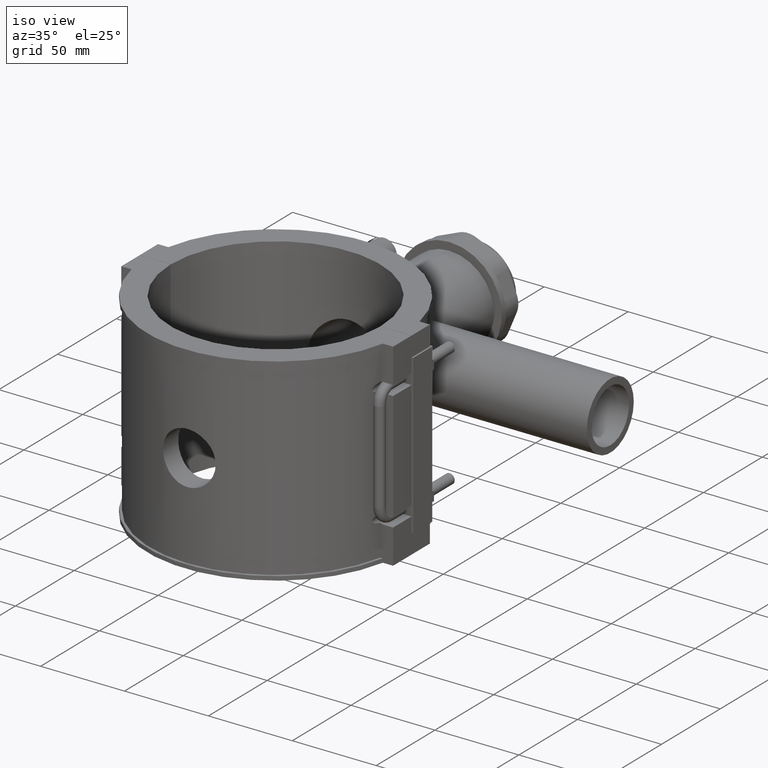
[diagram: clean part render]
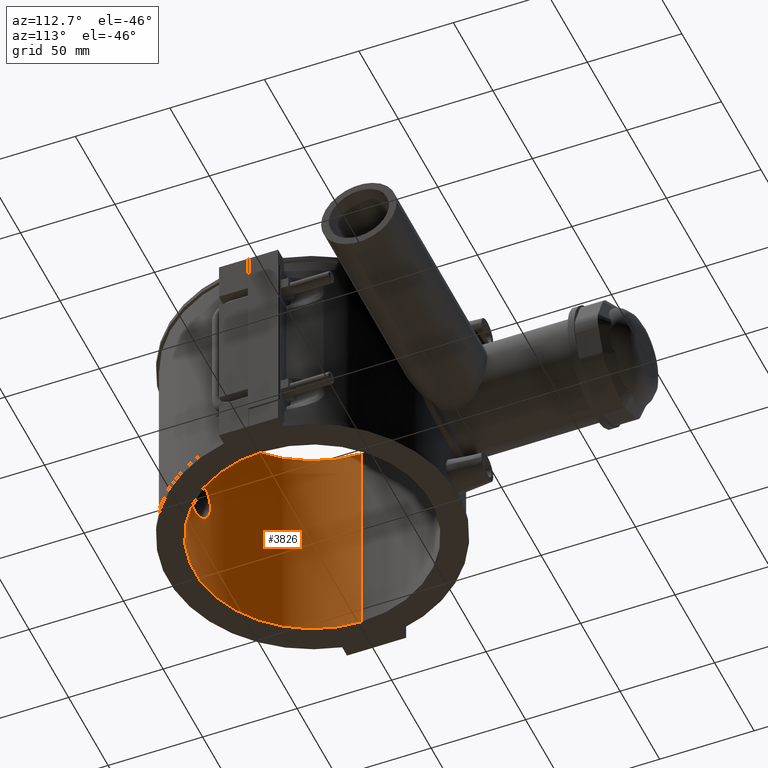
[diagram: tour spotlight — one face highlighted and labeled with its STEP entity id]
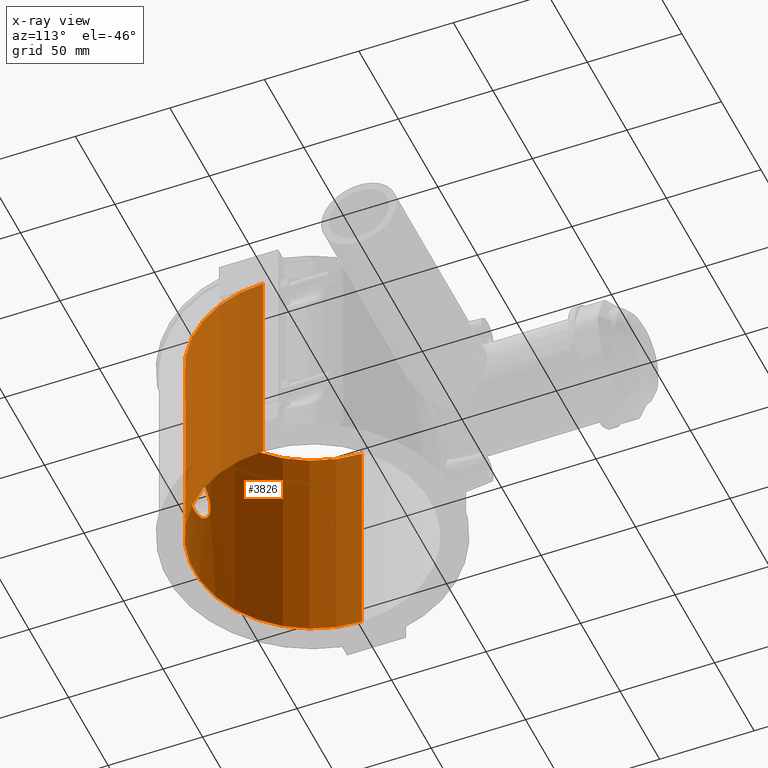
[diagram: x-ray of the same camera — body ghosted, this tour face saturated]
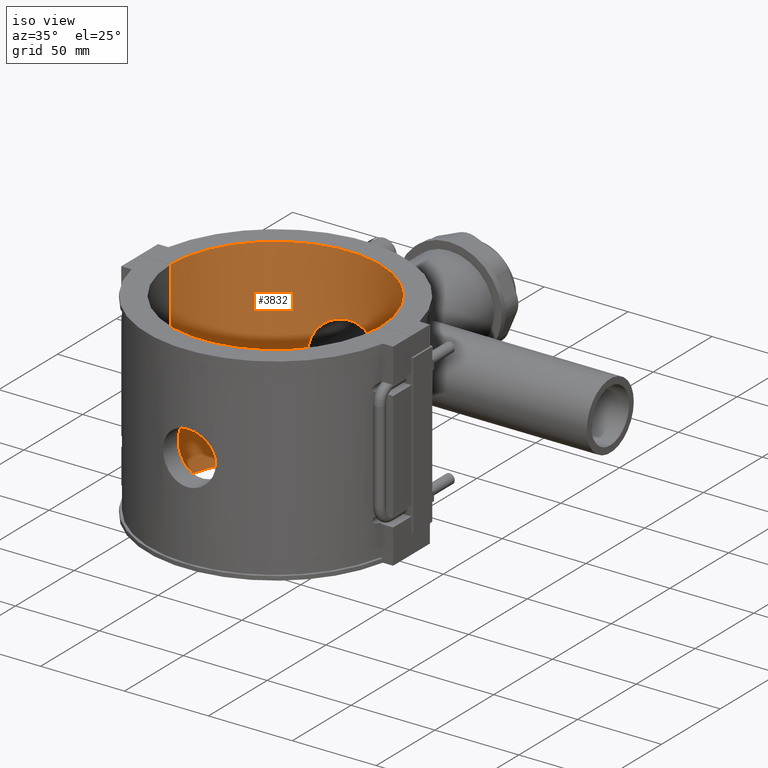
[diagram: tour spotlight — one face highlighted and labeled with its STEP entity id]
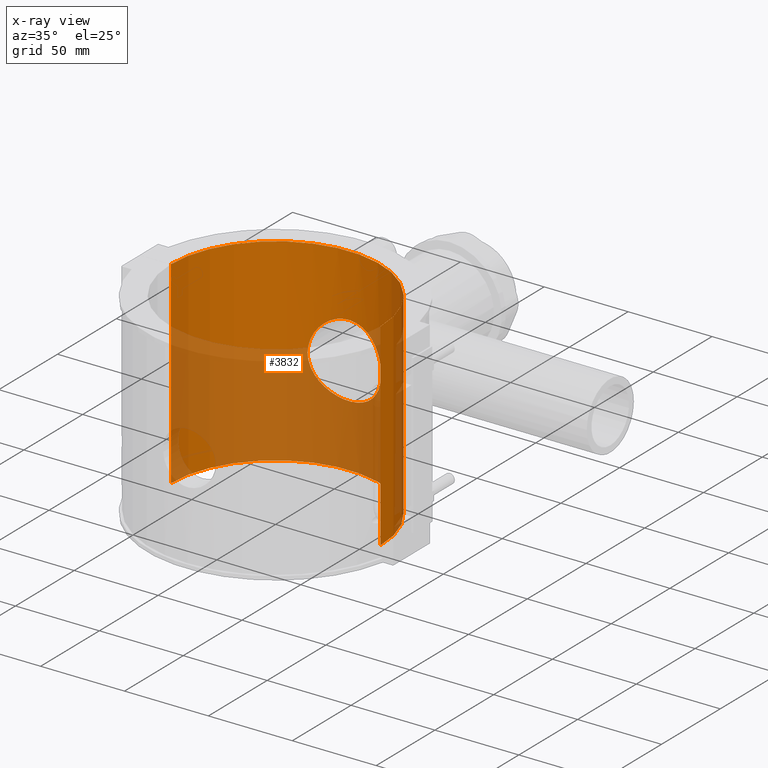
[diagram: x-ray of the same camera — body ghosted, this tour face saturated]
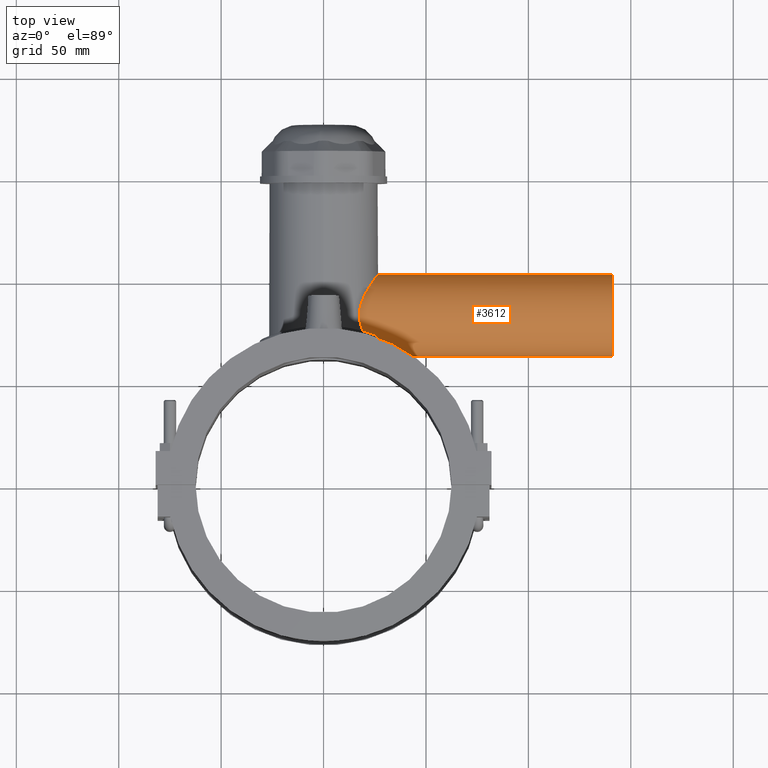
[diagram: tour spotlight — one face highlighted and labeled with its STEP entity id]
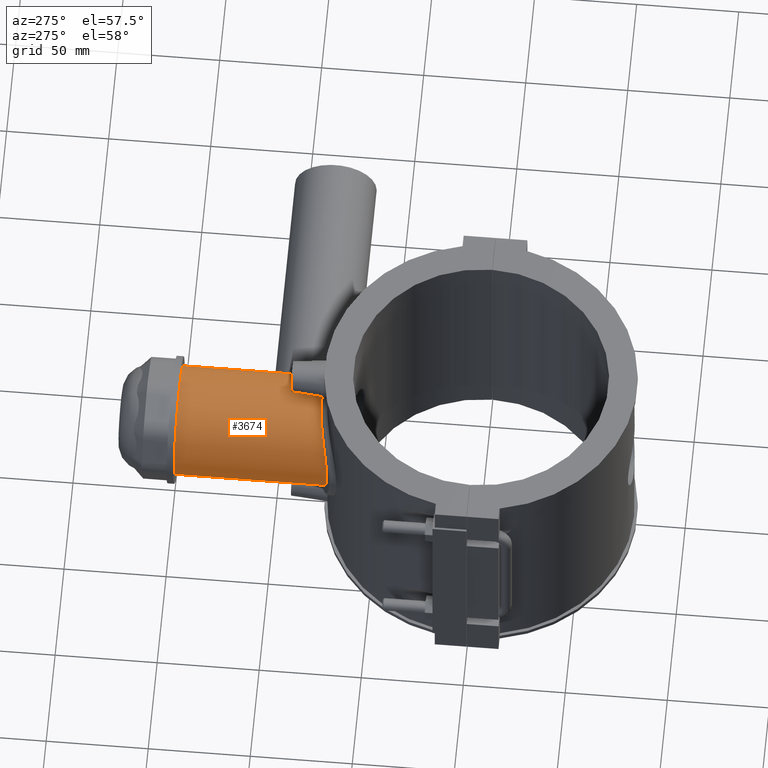
[diagram: tour spotlight — one face highlighted and labeled with its STEP entity id]
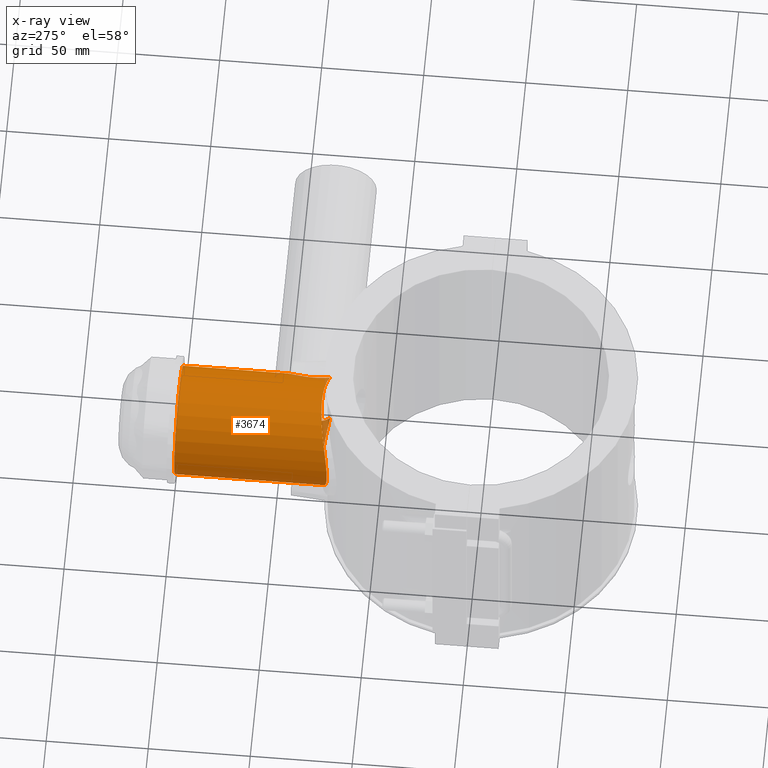
[diagram: x-ray of the same camera — body ghosted, this tour face saturated]
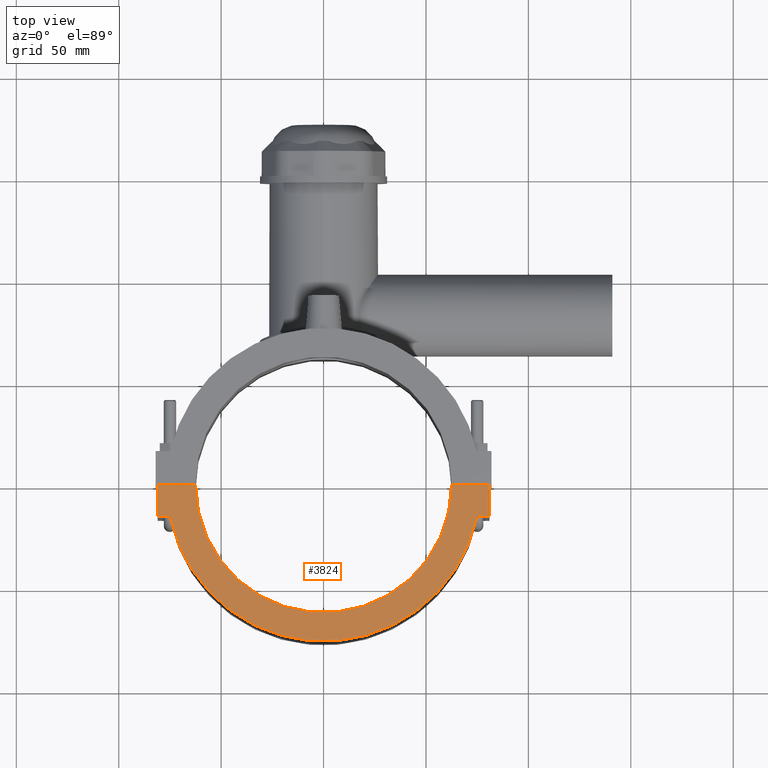
[diagram: tour spotlight — one face highlighted and labeled with its STEP entity id]
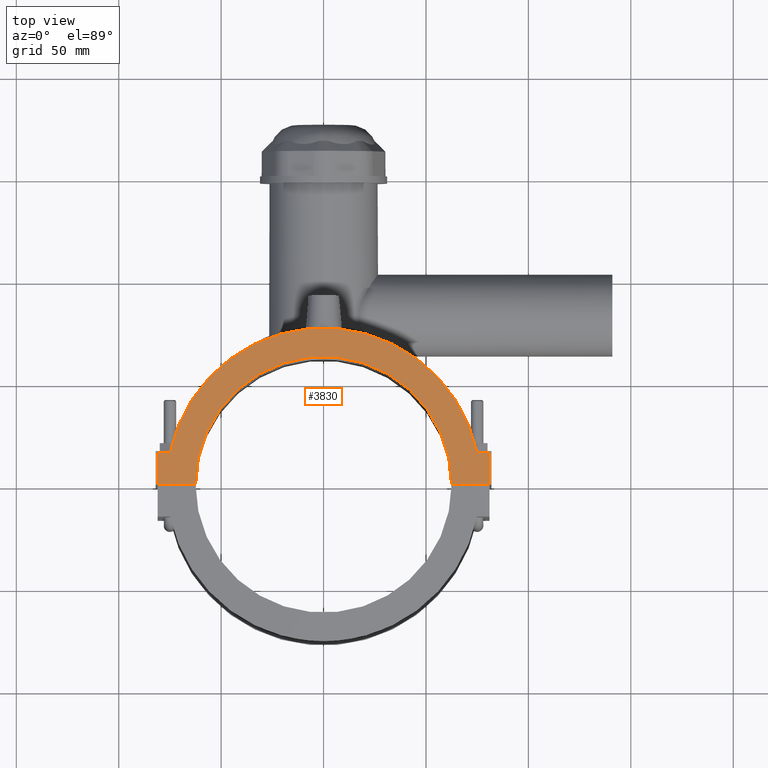
[diagram: tour spotlight — one face highlighted and labeled with its STEP entity id]
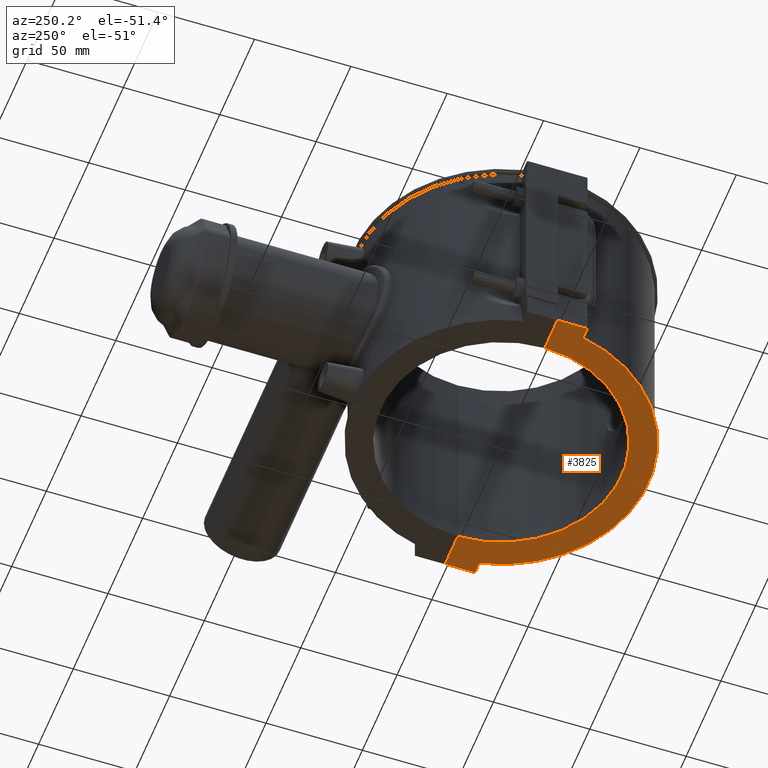
[diagram: tour spotlight — one face highlighted and labeled with its STEP entity id]
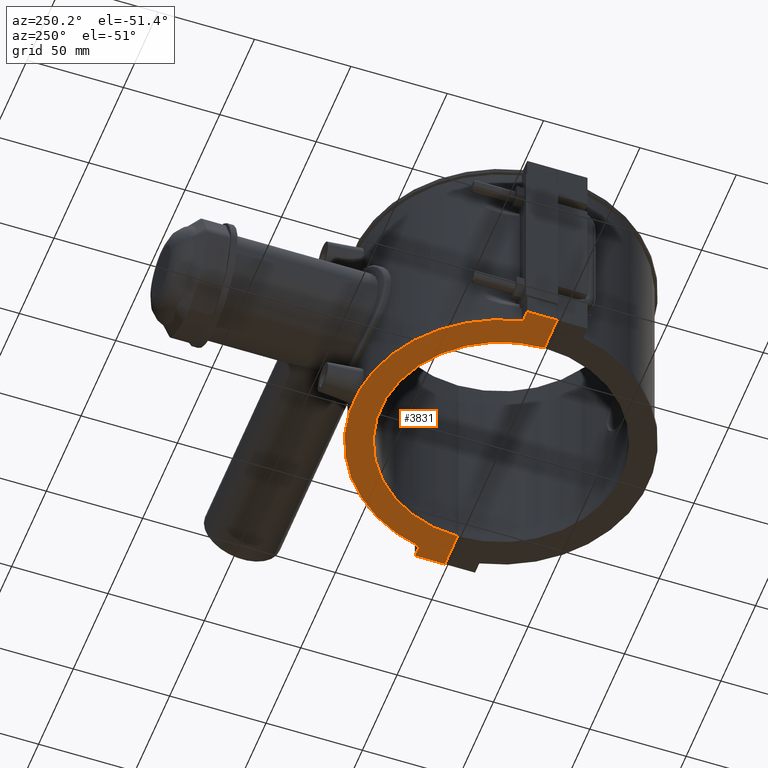
[diagram: tour spotlight — one face highlighted and labeled with its STEP entity id]
A machine part: a face-by-face anatomy tour. The part has 224 B-rep faces; the first image is the clean iso view, then the 8 largest visible faces are spotlighted one at a time (largest first), each with its STEP entity span.

Face 1 — auxiliary view, entity #3826. An x-ray twin of the same camera follows (body ghosted, this face saturated) — the face is partly hidden behind the body. In plain terms, the highlighted cylindrical surface (partial cylindrical patch) has radius 62.5 mm, axis along (0, 0, 1).
Definition (entity closure, byte-faithful):
#284=LINE('',#7683,#583);
#337=LINE('',#8075,#636);
#583=VECTOR('',#4889,118.);
#636=VECTOR('',#5078,118.);
#901=CIRCLE('',#4149,62.5);
#902=CIRCLE('',#4151,62.5);
#952=FACE_BOUND('',#1444,.T.);
#1172=FACE_OUTER_BOUND('',#1443,.T.);
#1443=EDGE_LOOP('',(#3507,#3508,#3509,#3510));
#1444=EDGE_LOOP('',(#3511));
#1510=B_SPLINE_CURVE_WITH_KNOTS('',3,(#6349,#6350,#6351,#6352,#6353,#6354,
#6355,#6356,#6357,#6358,#6359,#6360,#6361,#6362,#6363,#6364,#6365,#6366,
#6367,#6368,#6369,#6370,#6371,#6372,#6373,#6374,#6375,#6376,#6377,#6378,
#6379,#6380,#6381,#6382,#6383,#6384,#6385,#6386,#6387,#6388,#6389,#6390,
#6391,#6392,#6393,#6394,#6395,#6396,#6397,#6398,#6399,#6400,#6401,#6402,
#6403,#6404,#6405,#6406,#6407,#6408,#6409,#6410,#6411,#6412,#6413,#6414),
 .UNSPECIFIED.,.T.,.F.,(4,2,2,2,2,2,2,2,2,2,2,2,2,2,2,2,2,2,2,2,2,2,2,2,
2,2,2,2,2,2,2,2,4),(0.,0.296713617074853,0.593427234149707,0.89014085122456,
1.18685446829941,1.48352599418842,1.78019752007742,2.07686904596642,2.37354057185543,
2.67021209774443,2.96688362363343,3.26355514952244,3.56022667541144,3.85694029248629,
4.15365390956114,4.450367526636,4.74708114371085,5.04379476078571,5.34050837786056,
5.63722199493541,5.93393561201027,6.23060713789927,6.52727866378827,6.82395018967727,
7.12062171556628,7.41729324145528,7.71396476734428,8.01063629323329,8.30730781912229,
8.60402143619714,8.900735053272,9.19744867034685,9.4941622874217),
 .UNSPECIFIED.);
#1669=VERTEX_POINT('',#6348);
#1866=VERTEX_POINT('',#7680);
#1867=VERTEX_POINT('',#7682);
#1919=VERTEX_POINT('',#8072);
#1920=VERTEX_POINT('',#8074);
#2082=EDGE_CURVE('',#1669,#1669,#1510,.T.);
#2357=EDGE_CURVE('',#1867,#1866,#284,.T.);
#2450=EDGE_CURVE('',#1920,#1919,#337,.T.);
#2452=EDGE_CURVE('',#1920,#1866,#901,.T.);
#2453=EDGE_CURVE('',#1867,#1919,#902,.T.);
#3507=ORIENTED_EDGE('',*,*,#2450,.T.);
#3508=ORIENTED_EDGE('',*,*,#2453,.F.);
#3509=ORIENTED_EDGE('',*,*,#2357,.T.);
#3510=ORIENTED_EDGE('',*,*,#2452,.F.);
#3511=ORIENTED_EDGE('',*,*,#2082,.T.);
#3607=CYLINDRICAL_SURFACE('',#4152,62.5);
#3826=ADVANCED_FACE('',(#1172,#952),#3607,.F.);
#4149=AXIS2_PLACEMENT_3D('',#8079,#5084,#5085);
#4151=AXIS2_PLACEMENT_3D('',#8081,#5088,#5089);
#4152=AXIS2_PLACEMENT_3D('',#8082,#5090,#5091);
#4889=DIRECTION('',(0.,0.,1.));
#5078=DIRECTION('',(0.,0.,-1.));
#5084=DIRECTION('center_axis',(0.,0.,-1.));
#5085=DIRECTION('ref_axis',(-1.,0.,0.));
#5088=DIRECTION('center_axis',(0.,0.,1.));
#5089=DIRECTION('ref_axis',(-1.,0.,0.));
#5090=DIRECTION('center_axis',(0.,0.,1.));
#5091=DIRECTION('ref_axis',(-1.,0.,0.));
#6348=CARTESIAN_POINT('',(15.68,-60.5011371793952,-2.77555756156289E-16));
#6349=CARTESIAN_POINT('Ctrl Pts',(15.68,-60.5011371793952,-2.77555756156289E-16));
#6350=CARTESIAN_POINT('Ctrl Pts',(15.68,-60.5011371793952,0.989045390249511));
#6351=CARTESIAN_POINT('Ctrl Pts',(15.5849128879652,-60.5260509344362,2.01044452076717));
#6352=CARTESIAN_POINT('Ctrl Pts',(15.1859893214769,-60.6273707143846,4.03944615733215));
#6353=CARTESIAN_POINT('Ctrl Pts',(14.882254018715,-60.7036916421501,5.04707279805853));
#6354=CARTESIAN_POINT('Ctrl Pts',(14.0808790626117,-60.8945687159385,6.97734078903111));
#6355=CARTESIAN_POINT('Ctrl Pts',(13.5826027393085,-61.0090844109358,7.9016004003937));
#6356=CARTESIAN_POINT('Ctrl Pts',(12.4327969197639,-61.2537430575092,9.60978391321038));
#6357=CARTESIAN_POINT('Ctrl Pts',(11.7811822567518,-61.3836351907405,10.3936864012583));
#6358=CARTESIAN_POINT('Ctrl Pts',(10.3937848149181,-61.6337247036271,11.781083843092));
#6359=CARTESIAN_POINT('Ctrl Pts',(9.60992827535144,-61.7627993138526,12.4326873128922));
#6360=CARTESIAN_POINT('Ctrl Pts',(7.90171663618481,-62.004491569047,13.5825369316202));
#6361=CARTESIAN_POINT('Ctrl Pts',(6.97738300336776,-62.1168773493664,14.0808636950187));
#6362=CARTESIAN_POINT('Ctrl Pts',(5.04696967397419,-62.3034382855447,14.88229467369));
#6363=CARTESIAN_POINT('Ctrl Pts',(4.039273959469,-62.3776074704934,15.1860356320058));
#6364=CARTESIAN_POINT('Ctrl Pts',(2.0102529703561,-62.4759196079409,15.5849380920303));
#6365=CARTESIAN_POINT('Ctrl Pts',(0.988905086296677,-62.5,15.68));
#6366=CARTESIAN_POINT('Ctrl Pts',(-0.988905086296675,-62.5,15.68));
#6367=CARTESIAN_POINT('Ctrl Pts',(-2.0102529703561,-62.4759196079409,15.5849380920303));
#6368=CARTESIAN_POINT('Ctrl Pts',(-4.039273959469,-62.3776074704934,15.1860356320058));
#6369=CARTESIAN_POINT('Ctrl Pts',(-5.04696967397419,-62.3034382855447,14.88229467369));
#6370=CARTESIAN_POINT('Ctrl Pts',(-6.97738300336776,-62.1168773493664,14.0808636950187));
#6371=CARTESIAN_POINT('Ctrl Pts',(-7.90171663618481,-62.004491569047,13.5825369316202));
#6372=CARTESIAN_POINT('Ctrl Pts',(-9.60992827535144,-61.7627993138526,12.4326873128922));
#6373=CARTESIAN_POINT('Ctrl Pts',(-10.3937848149181,-61.6337247036271,11.781083843092));
#6374=CARTESIAN_POINT('Ctrl Pts',(-11.7811822567518,-61.3836351907405,10.3936864012583));
#6375=CARTESIAN_POINT('Ctrl Pts',(-12.4327969197639,-61.2537430575092,9.60978391321039));
#6376=CARTESIAN_POINT('Ctrl Pts',(-13.5826027393085,-61.0090844109358,7.9016004003937));
#6377=CARTESIAN_POINT('Ctrl Pts',(-14.0808790626117,-60.8945687159385,6.97734078903112));
#6378=CARTESIAN_POINT('Ctrl Pts',(-14.882254018715,-60.7036916421501,5.04707279805853));
#6379=CARTESIAN_POINT('Ctrl Pts',(-15.1859893214769,-60.6273707143846,4.03944615733215));
#6380=CARTESIAN_POINT('Ctrl Pts',(-15.5849128879652,-60.5260509344362,2.01044452076717));
#6381=CARTESIAN_POINT('Ctrl Pts',(-15.68,-60.5011371793952,0.989045390249513));
#6382=CARTESIAN_POINT('Ctrl Pts',(-15.68,-60.5011371793952,-0.989045390249513));
#6383=CARTESIAN_POINT('Ctrl Pts',(-15.5849128879652,-60.5260509344362,-2.01044452076717));
#6384=CARTESIAN_POINT('Ctrl Pts',(-15.1859893214769,-60.6273707143846,-4.03944615733215));
#6385=CARTESIAN_POINT('Ctrl Pts',(-14.882254018715,-60.7036916421501,-5.04707279805853));
#6386=CARTESIAN_POINT('Ctrl Pts',(-14.0808790626117,-60.8945687159385,-6.97734078903111));
#6387=CARTESIAN_POINT('Ctrl Pts',(-13.5826027393085,-61.0090844109358,-7.90160040039369));
#6388=CARTESIAN_POINT('Ctrl Pts',(-12.4327969197639,-61.2537430575092,-9.60978391321038));
#6389=CARTESIAN_POINT('Ctrl Pts',(-11.7811822567518,-61.3836351907405,-10.3936864012583));
#6390=CARTESIAN_POINT('Ctrl Pts',(-10.3937848149181,-61.6337247036271,-11.781083843092));
#6391=CARTESIAN_POINT('Ctrl Pts',(-9.60992827535144,-61.7627993138526,-12.4326873128922));
#6392=CARTESIAN_POINT('Ctrl Pts',(-7.90171663618481,-62.004491569047,-13.5825369316202));
#6393=CARTESIAN_POINT('Ctrl Pts',(-6.97738300336776,-62.1168773493664,-14.0808636950187));
#6394=CARTESIAN_POINT('Ctrl Pts',(-5.04696967397419,-62.3034382855447,-14.88229467369));
#6395=CARTESIAN_POINT('Ctrl Pts',(-4.039273959469,-62.3776074704934,-15.1860356320058));
#6396=CARTESIAN_POINT('Ctrl Pts',(-2.01025297035611,-62.4759196079409,-15.5849380920303));
#6397=CARTESIAN_POINT('Ctrl Pts',(-0.988905086296681,-62.5,-15.68));
#6398=CARTESIAN_POINT('Ctrl Pts',(0.988905086296675,-62.5,-15.68));
#6399=CARTESIAN_POINT('Ctrl Pts',(2.0102529703561,-62.4759196079409,-15.5849380920303));
#6400=CARTESIAN_POINT('Ctrl Pts',(4.039273959469,-62.3776074704934,-15.1860356320058));
#6401=CARTESIAN_POINT('Ctrl Pts',(5.04696967397418,-62.3034382855447,-14.88229467369));
#6402=CARTESIAN_POINT('Ctrl Pts',(6.97738300336775,-62.1168773493664,-14.0808636950187));
#6403=CARTESIAN_POINT('Ctrl Pts',(7.90171663618481,-62.004491569047,-13.5825369316202));
#6404=CARTESIAN_POINT('Ctrl Pts',(9.60992827535144,-61.7627993138526,-12.4326873128922));
#6405=CARTESIAN_POINT('Ctrl Pts',(10.3937848149181,-61.6337247036271,-11.781083843092));
#6406=CARTESIAN_POINT('Ctrl Pts',(11.7811822567518,-61.3836351907405,-10.3936864012583));
#6407=CARTESIAN_POINT('Ctrl Pts',(12.4327969197639,-61.2537430575092,-9.60978391321038));
#6408=CARTESIAN_POINT('Ctrl Pts',(13.5826027393085,-61.0090844109358,-7.9016004003937));
#6409=CARTESIAN_POINT('Ctrl Pts',(14.0808790626117,-60.8945687159385,-6.97734078903111));
#6410=CARTESIAN_POINT('Ctrl Pts',(14.882254018715,-60.7036916421501,-5.04707279805852));
#6411=CARTESIAN_POINT('Ctrl Pts',(15.1859893214769,-60.6273707143846,-4.03944615733214));
#6412=CARTESIAN_POINT('Ctrl Pts',(15.5849128879652,-60.5260509344362,-2.01044452076716));
#6413=CARTESIAN_POINT('Ctrl Pts',(15.68,-60.5011371793952,-0.989045390249508));
#6414=CARTESIAN_POINT('Ctrl Pts',(15.68,-60.5011371793952,-2.77555756156289E-16));
#7680=CARTESIAN_POINT('',(-62.4999799999968,-0.0500000000000078,59.));
#7682=CARTESIAN_POINT('',(-62.4999799999968,-0.0500000000000078,-59.));
#7683=CARTESIAN_POINT('',(-62.4999799999968,-0.0500000000000078,0.));
#8072=CARTESIAN_POINT('',(62.4999799999968,-0.0500000000000078,-59.));
#8074=CARTESIAN_POINT('',(62.4999799999968,-0.0500000000000078,59.));
#8075=CARTESIAN_POINT('',(62.4999799999968,-0.0500000000000078,0.));
#8079=CARTESIAN_POINT('Origin',(0.,0.,59.));
#8081=CARTESIAN_POINT('Origin',(0.,0.,-59.));
#8082=CARTESIAN_POINT('Origin',(0.,0.,0.));

Face 2 — iso view, entity #3832. An x-ray twin of the same camera follows (body ghosted, this face saturated) — the face is partly hidden behind the body. In plain terms, the highlighted cylindrical surface (partial cylindrical patch) has radius 62.5 mm, axis along (0, 0, 1).
Definition (entity closure, byte-faithful):
#280=LINE('',#7675,#579);
#340=LINE('',#8089,#639);
#579=VECTOR('',#4883,118.);
#639=VECTOR('',#5099,118.);
#903=CIRCLE('',#4157,62.5);
#904=CIRCLE('',#4159,62.5);
#955=FACE_BOUND('',#1453,.T.);
#1178=FACE_OUTER_BOUND('',#1452,.T.);
#1452=EDGE_LOOP('',(#3546,#3547,#3548,#3549));
#1453=EDGE_LOOP('',(#3550));
#1455=B_SPLINE_CURVE_WITH_KNOTS('',3,(#5118,#5119,#5120,#5121,#5122,#5123,
#5124,#5125,#5126,#5127,#5128,#5129,#5130,#5131,#5132,#5133,#5134,#5135,
#5136,#5137,#5138,#5139,#5140,#5141,#5142,#5143,#5144,#5145,#5146,#5147,
#5148,#5149,#5150,#5151,#5152,#5153,#5154,#5155,#5156,#5157,#5158,#5159,
#5160,#5161,#5162,#5163,#5164,#5165,#5166,#5167,#5168,#5169,#5170,#5171,
#5172,#5173,#5174,#5175,#5176,#5177,#5178,#5179,#5180,#5181,#5182,#5183),
 .UNSPECIFIED.,.T.,.F.,(4,2,2,2,2,2,2,2,2,2,2,2,2,2,2,2,2,2,2,2,2,2,2,2,
2,2,2,2,2,2,2,2,4),(0.,0.415957538762255,0.831915077524511,1.24787261628677,
1.66383015504902,2.07955045950405,2.49527076395908,2.91099106841411,3.32671137286914,
3.74243167732418,4.15815198177921,4.57387228623424,4.98959259068927,5.40555012945152,
5.82150766821378,6.23746520697603,6.65342274573829,7.06938028450055,7.4853378232628,
7.90129536202506,8.31725290078731,8.73297320524234,9.14869350969737,9.56441381415241,
9.98013411860744,10.3958544230625,10.8115747275175,11.2272950319725,11.6430153364276,
12.0589728751898,12.4749304139521,12.8908879527143,13.3068454914766),
 .UNSPECIFIED.);
#1570=VERTEX_POINT('',#5117);
#1863=VERTEX_POINT('',#7672);
#1864=VERTEX_POINT('',#7674);
#1921=VERTEX_POINT('',#8086);
#1922=VERTEX_POINT('',#8088);
#1924=EDGE_CURVE('',#1570,#1570,#1455,.T.);
#2353=EDGE_CURVE('',#1864,#1863,#280,.T.);
#2455=EDGE_CURVE('',#1922,#1921,#340,.T.);
#2458=EDGE_CURVE('',#1864,#1921,#903,.T.);
#2459=EDGE_CURVE('',#1922,#1863,#904,.T.);
#3546=ORIENTED_EDGE('',*,*,#2455,.T.);
#3547=ORIENTED_EDGE('',*,*,#2458,.F.);
#3548=ORIENTED_EDGE('',*,*,#2353,.T.);
#3549=ORIENTED_EDGE('',*,*,#2459,.F.);
#3550=ORIENTED_EDGE('',*,*,#1924,.T.);
#3609=CYLINDRICAL_SURFACE('',#4160,62.5);
#3832=ADVANCED_FACE('',(#1178,#955),#3609,.F.);
#4157=AXIS2_PLACEMENT_3D('',#8094,#5104,#5105);
#4159=AXIS2_PLACEMENT_3D('',#8096,#5108,#5109);
#4160=AXIS2_PLACEMENT_3D('',#8098,#5111,#5112);
#4883=DIRECTION('',(0.,0.,-1.));
#5099=DIRECTION('',(0.,0.,1.));
#5104=DIRECTION('center_axis',(0.,0.,-1.));
#5105=DIRECTION('ref_axis',(-1.,0.,0.));
#5108=DIRECTION('center_axis',(0.,0.,1.));
#5109=DIRECTION('ref_axis',(-1.,0.,0.));
#5111=DIRECTION('center_axis',(0.,0.,1.));
#5112=DIRECTION('ref_axis',(-1.,0.,0.));
#5117=CARTESIAN_POINT('',(-21.875,58.546856234985,2.63677968348475E-14));
#5118=CARTESIAN_POINT('Ctrl Pts',(-21.875,58.546856234985,2.63677968348475E-14));
#5119=CARTESIAN_POINT('Ctrl Pts',(-21.875,58.546856234985,1.38652512920754));
#5120=CARTESIAN_POINT('Ctrl Pts',(-21.7410555530225,58.5974848041858,2.81619892029823));
#5121=CARTESIAN_POINT('Ctrl Pts',(-21.181553524313,58.8020451352234,5.65210256194903));
#5122=CARTESIAN_POINT('Ctrl Pts',(-20.7561622986103,58.9557603133794,7.05838084918067));
#5123=CARTESIAN_POINT('Ctrl Pts',(-19.6365392524231,59.3380673422095,9.74912227916598));
#5124=CARTESIAN_POINT('Ctrl Pts',(-18.941419537031,59.5665433440774,11.0359525388268));
#5125=CARTESIAN_POINT('Ctrl Pts',(-17.3396075448962,60.052381052861,13.4129651034833));
#5126=CARTESIAN_POINT('Ctrl Pts',(-16.4327708795825,60.3092499931612,14.503150797329));
#5127=CARTESIAN_POINT('Ctrl Pts',(-14.5037010603255,60.801999295391,16.4322206165859));
#5128=CARTESIAN_POINT('Ctrl Pts',(-13.4137767451013,61.0556263927817,17.3389901282091));
#5129=CARTESIAN_POINT('Ctrl Pts',(-11.0366196352524,61.5297647304821,18.9410404236467));
#5130=CARTESIAN_POINT('Ctrl Pts',(-9.74938300463021,61.7498501438917,19.6364415115092));
#5131=CARTESIAN_POINT('Ctrl Pts',(-7.05782881870611,62.1150667241444,20.7563812510251));
#5132=CARTESIAN_POINT('Ctrl Pts',(-5.65115621672553,62.2602157339597,21.181809420401));
#5133=CARTESIAN_POINT('Ctrl Pts',(-2.81512860072899,62.4527427803412,21.7411974802081));
#5134=CARTESIAN_POINT('Ctrl Pts',(-1.38573434818344,62.5,21.875));
#5135=CARTESIAN_POINT('Ctrl Pts',(1.38573434818343,62.5,21.875));
#5136=CARTESIAN_POINT('Ctrl Pts',(2.81512860072897,62.4527427803412,21.7411974802081));
#5137=CARTESIAN_POINT('Ctrl Pts',(5.65115621672552,62.2602157339597,21.181809420401));
#5138=CARTESIAN_POINT('Ctrl Pts',(7.0578288187061,62.1150667241444,20.7563812510251));
#5139=CARTESIAN_POINT('Ctrl Pts',(9.74938300463019,61.7498501438917,19.6364415115092));
#5140=CARTESIAN_POINT('Ctrl Pts',(11.0366196352524,61.5297647304821,18.9410404236467));
#5141=CARTESIAN_POINT('Ctrl Pts',(13.4137767451013,61.0556263927817,17.3389901282091));
#5142=CARTESIAN_POINT('Ctrl Pts',(14.5037010603255,60.801999295391,16.432220616586));
#5143=CARTESIAN_POINT('Ctrl Pts',(16.4327708795824,60.3092499931612,14.503150797329));
#5144=CARTESIAN_POINT('Ctrl Pts',(17.3396075448962,60.052381052861,13.4129651034833));
#5145=CARTESIAN_POINT('Ctrl Pts',(18.941419537031,59.5665433440774,11.0359525388268));
#5146=CARTESIAN_POINT('Ctrl Pts',(19.6365392524231,59.3380673422095,9.74912227916598));
#5147=CARTESIAN_POINT('Ctrl Pts',(20.7561622986103,58.9557603133794,7.05838084918067));
#5148=CARTESIAN_POINT('Ctrl Pts',(21.181553524313,58.8020451352234,5.65210256194903));
#5149=CARTESIAN_POINT('Ctrl Pts',(21.7410555530225,58.5974848041858,2.81619892029823));
#5150=CARTESIAN_POINT('Ctrl Pts',(21.875,58.546856234985,1.38652512920755));
#5151=CARTESIAN_POINT('Ctrl Pts',(21.875,58.546856234985,-1.38652512920749));
#5152=CARTESIAN_POINT('Ctrl Pts',(21.7410555530225,58.5974848041858,-2.81619892029817));
#5153=CARTESIAN_POINT('Ctrl Pts',(21.181553524313,58.8020451352234,-5.65210256194898));
#5154=CARTESIAN_POINT('Ctrl Pts',(20.7561622986103,58.9557603133794,-7.05838084918061));
#5155=CARTESIAN_POINT('Ctrl Pts',(19.6365392524231,59.3380673422095,-9.74912227916592));
#5156=CARTESIAN_POINT('Ctrl Pts',(18.941419537031,59.5665433440774,-11.0359525388268));
#5157=CARTESIAN_POINT('Ctrl Pts',(17.3396075448962,60.052381052861,-13.4129651034832));
#5158=CARTESIAN_POINT('Ctrl Pts',(16.4327708795825,60.3092499931612,-14.503150797329));
#5159=CARTESIAN_POINT('Ctrl Pts',(14.5037010603255,60.801999295391,-16.4322206165859));
#5160=CARTESIAN_POINT('Ctrl Pts',(13.4137767451013,61.0556263927817,-17.338990128209));
#5161=CARTESIAN_POINT('Ctrl Pts',(11.0366196352524,61.5297647304821,-18.9410404236466));
#5162=CARTESIAN_POINT('Ctrl Pts',(9.74938300463021,61.7498501438917,-19.6364415115091));
#5163=CARTESIAN_POINT('Ctrl Pts',(7.05782881870611,62.1150667241444,-20.7563812510251));
#5164=CARTESIAN_POINT('Ctrl Pts',(5.65115621672553,62.2602157339597,-21.181809420401));
#5165=CARTESIAN_POINT('Ctrl Pts',(2.81512860072898,62.4527427803412,-21.7411974802081));
#5166=CARTESIAN_POINT('Ctrl Pts',(1.38573434818344,62.5,-21.875));
#5167=CARTESIAN_POINT('Ctrl Pts',(-1.38573434818343,62.5,-21.875));
#5168=CARTESIAN_POINT('Ctrl Pts',(-2.81512860072897,62.4527427803412,-21.7411974802081));
#5169=CARTESIAN_POINT('Ctrl Pts',(-5.65115621672551,62.2602157339597,-21.181809420401));
#5170=CARTESIAN_POINT('Ctrl Pts',(-7.05782881870608,62.1150667241444,-20.7563812510251));
#5171=CARTESIAN_POINT('Ctrl Pts',(-9.74938300463018,61.7498501438917,-19.6364415115092));
#5172=CARTESIAN_POINT('Ctrl Pts',(-11.0366196352524,61.5297647304822,-18.9410404236467));
#5173=CARTESIAN_POINT('Ctrl Pts',(-13.4137767451013,61.0556263927818,-17.3389901282091));
#5174=CARTESIAN_POINT('Ctrl Pts',(-14.5037010603255,60.801999295391,-16.4322206165859));
#5175=CARTESIAN_POINT('Ctrl Pts',(-16.4327708795824,60.3092499931612,-14.503150797329));
#5176=CARTESIAN_POINT('Ctrl Pts',(-17.3396075448962,60.052381052861,-13.4129651034833));
#5177=CARTESIAN_POINT('Ctrl Pts',(-18.941419537031,59.5665433440774,-11.0359525388268));
#5178=CARTESIAN_POINT('Ctrl Pts',(-19.6365392524231,59.3380673422094,-9.74912227916594));
#5179=CARTESIAN_POINT('Ctrl Pts',(-20.7561622986103,58.9557603133794,-7.05838084918062));
#5180=CARTESIAN_POINT('Ctrl Pts',(-21.181553524313,58.8020451352234,-5.65210256194898));
#5181=CARTESIAN_POINT('Ctrl Pts',(-21.7410555530225,58.5974848041858,-2.81619892029817));
#5182=CARTESIAN_POINT('Ctrl Pts',(-21.875,58.546856234985,-1.38652512920749));
#5183=CARTESIAN_POINT('Ctrl Pts',(-21.875,58.546856234985,2.74780198594726E-14));
#7672=CARTESIAN_POINT('',(-62.4999799999968,0.0500000000000078,-59.));
#7674=CARTESIAN_POINT('',(-62.4999799999968,0.0500000000000078,59.));
#7675=CARTESIAN_POINT('',(-62.4999799999968,0.0500000000000078,0.));
#8086=CARTESIAN_POINT('',(62.4999799999968,0.0500000000000078,59.));
#8088=CARTESIAN_POINT('',(62.4999799999968,0.0500000000000078,-59.));
#8089=CARTESIAN_POINT('',(62.4999799999968,0.0500000000000078,0.));
#8094=CARTESIAN_POINT('Origin',(0.,0.,59.));
#8096=CARTESIAN_POINT('Origin',(0.,0.,-59.));
#8098=CARTESIAN_POINT('Origin',(0.,0.,0.));

Face 3 — top view, entity #3612. In plain terms, the highlighted cylindrical surface (bore or boss wall) has radius 20 mm, axis along (1, 0, 0).
Definition (entity closure, byte-faithful):
#783=CIRCLE('',#3840,20.);
#907=FACE_BOUND('',#1185,.T.);
#958=FACE_OUTER_BOUND('',#1184,.T.);
#1184=EDGE_LOOP('',(#2465,#2466,#2467,#2468,#2469,#2470,#2471,#2472,#2473));
#1185=EDGE_LOOP('',(#2474));
#1457=B_SPLINE_CURVE_WITH_KNOTS('',3,(#5249,#5250,#5251,#5252),
 .UNSPECIFIED.,.F.,.F.,(4,4),(1.86278821012522,2.41282875694244),
 .UNSPECIFIED.);
#1458=B_SPLINE_CURVE_WITH_KNOTS('',3,(#5254,#5255,#5256,#5257,#5258,#5259,
#5260,#5261),.UNSPECIFIED.,.F.,.F.,(4,2,2,4),(-0.262887672457377,-0.155580066982256,
-0.0499399551430096,0.),.UNSPECIFIED.);
#1459=B_SPLINE_CURVE_WITH_KNOTS('',3,(#5263,#5264,#5265,#5266,#5267,#5268),
 .UNSPECIFIED.,.F.,.F.,(4,2,4),(10.9843935819185,11.3264247554927,11.3445441263012),
 .UNSPECIFIED.);
#1460=B_SPLINE_CURVE_WITH_KNOTS('',3,(#5270,#5271,#5272,#5273,#5274,#5275,
#5276,#5277,#5278,#5279,#5280,#5281,#5282,#5283,#5284,#5285,#5286,#5287,
#5288,#5289,#5290,#5291,#5292,#5293,#5294,#5295),.UNSPECIFIED.,.F.,.F.,
(4,2,2,2,2,2,2,2,2,2,2,2,4),(2.04148520029184,2.36846390151587,2.76320788510185,
3.15795186868783,3.64306458661636,3.88562094558063,4.1281773045449,4.37073366350916,
4.61329002247343,5.09840274040196,5.49314672398794,5.88789070757392,6.21486940879795),
 .UNSPECIFIED.);
#1461=B_SPLINE_CURVE_WITH_KNOTS('',3,(#5297,#5298,#5299,#5300,#5301,#5302),
 .UNSPECIFIED.,.F.,.F.,(4,2,4),(7.41132430890424,7.42944367973329,7.77147485330758),
 .UNSPECIFIED.);
#1462=B_SPLINE_CURVE_WITH_KNOTS('',3,(#5304,#5305,#5306,#5307,#5308,#5309,
#5310,#5311),.UNSPECIFIED.,.F.,.F.,(4,2,2,4),(-0.257751351554159,-0.172843022657377,
-0.0844555318854293,0.),.UNSPECIFIED.);
#1463=B_SPLINE_CURVE_WITH_KNOTS('',3,(#5313,#5314,#5315,#5316),
 .UNSPECIFIED.,.F.,.F.,(4,4),(1.14988537338724,1.69992592036977),
 .UNSPECIFIED.);
#1464=B_SPLINE_CURVE_WITH_KNOTS('',3,(#5318,#5319,#5320,#5321,#5322,#5323,
#5324,#5325),.UNSPECIFIED.,.F.,.F.,(4,2,2,4),(0.,0.403262324193245,0.80652464838649,
0.816137397736081),.UNSPECIFIED.);
#1465=B_SPLINE_CURVE_WITH_KNOTS('',3,(#5326,#5327,#5328,#5329,#5330,#5331,
#5332,#5333,#5334,#5335,#5336,#5337,#5338,#5339,#5340,#5341,#5342,#5343,
#5344,#5345,#5346,#5347,#5348,#5349,#5350,#5351,#5352,#5353,#5354,#5355,
#5356,#5357,#5358,#5359,#5360,#5361,#5362,#5363,#5364,#5365),
 .UNSPECIFIED.,.F.,.F.,(4,2,2,2,2,2,2,2,2,2,2,2,2,2,2,2,2,2,2,4),(5.56663789949265,
5.57625064884224,5.97951297303548,6.38277529722872,6.78603762142197,7.18929994561521,
7.59256226980846,7.9958245940017,8.39040918196205,8.78499376992239,9.17957835788274,
9.57416294584309,9.96874753380343,10.3633321217638,10.7579167097241,11.1525012976845,
11.5557636218777,11.959025946071,12.3622882702642,12.7655505944574),
 .UNSPECIFIED.);
#1573=VERTEX_POINT('',#5247);
#1574=VERTEX_POINT('',#5248);
#1575=VERTEX_POINT('',#5253);
#1576=VERTEX_POINT('',#5262);
#1577=VERTEX_POINT('',#5269);
#1578=VERTEX_POINT('',#5296);
#1579=VERTEX_POINT('',#5303);
#1580=VERTEX_POINT('',#5312);
#1581=VERTEX_POINT('',#5317);
#1582=VERTEX_POINT('',#5366);
#1927=EDGE_CURVE('',#1573,#1574,#1457,.T.);
#1928=EDGE_CURVE('',#1575,#1573,#1458,.T.);
#1929=EDGE_CURVE('',#1576,#1575,#1459,.T.);
#1930=EDGE_CURVE('',#1577,#1576,#1460,.T.);
#1931=EDGE_CURVE('',#1578,#1577,#1461,.T.);
#1932=EDGE_CURVE('',#1579,#1578,#1462,.T.);
#1933=EDGE_CURVE('',#1580,#1579,#1463,.T.);
#1934=EDGE_CURVE('',#1581,#1580,#1464,.T.);
#1935=EDGE_CURVE('',#1574,#1581,#1465,.T.);
#1936=EDGE_CURVE('',#1582,#1582,#783,.T.);
#2465=ORIENTED_EDGE('',*,*,#1927,.F.);
#2466=ORIENTED_EDGE('',*,*,#1928,.F.);
#2467=ORIENTED_EDGE('',*,*,#1929,.F.);
#2468=ORIENTED_EDGE('',*,*,#1930,.F.);
#2469=ORIENTED_EDGE('',*,*,#1931,.F.);
#2470=ORIENTED_EDGE('',*,*,#1932,.F.);
#2471=ORIENTED_EDGE('',*,*,#1933,.F.);
#2472=ORIENTED_EDGE('',*,*,#1934,.F.);
#2473=ORIENTED_EDGE('',*,*,#1935,.F.);
#2474=ORIENTED_EDGE('',*,*,#1936,.F.);
#3556=CYLINDRICAL_SURFACE('',#3839,20.);
#3612=ADVANCED_FACE('',(#958,#907),#3556,.T.);
#3839=AXIS2_PLACEMENT_3D('',#5246,#4170,#4171);
#3840=AXIS2_PLACEMENT_3D('',#5367,#4172,#4173);
#4170=DIRECTION('center_axis',(1.,0.,0.));
#4171=DIRECTION('ref_axis',(0.,1.,0.));
#4172=DIRECTION('center_axis',(1.,0.,0.));
#4173=DIRECTION('ref_axis',(0.,0.,-1.));
#5246=CARTESIAN_POINT('Origin',(70.5,83.5,0.));
#5247=CARTESIAN_POINT('',(24.695805029351,73.9872773789674,17.5928425314183));
#5248=CARTESIAN_POINT('',(19.18069340179,75.6049006590044,18.3757287391064));
#5249=CARTESIAN_POINT('Ctrl Pts',(24.6958050293511,73.9872773789675,17.5928425314188));
#5250=CARTESIAN_POINT('Ctrl Pts',(22.8942618455231,74.5886045367691,17.9179894453666));
#5251=CARTESIAN_POINT('Ctrl Pts',(21.0470620868086,75.1314095661989,18.1722941200753));
#5252=CARTESIAN_POINT('Ctrl Pts',(19.1806933953723,75.6049006405849,18.3757287231));
#5253=CARTESIAN_POINT('',(26.4401002255017,72.4312873406342,16.6578389974511));
#5254=CARTESIAN_POINT('Ctrl Pts',(26.4401002255285,72.4312873406168,16.6578389974213));
#5255=CARTESIAN_POINT('Ctrl Pts',(26.3335697827751,72.685759172179,16.8269290927155));
#5256=CARTESIAN_POINT('Ctrl Pts',(26.162951664129,72.9445863067956,16.9900381320571));
#5257=CARTESIAN_POINT('Ctrl Pts',(25.7143916926886,73.4198697539912,17.2761893405554));
#5258=CARTESIAN_POINT('Ctrl Pts',(25.4439963084902,73.6304167423672,17.3961372922677));
#5259=CARTESIAN_POINT('Ctrl Pts',(25.0018877635018,73.8687690422187,17.5284639396727));
#5260=CARTESIAN_POINT('Ctrl Pts',(24.8514433513553,73.935327722331,17.5647525469288));
#5261=CARTESIAN_POINT('Ctrl Pts',(24.6958050293503,73.9872773789678,17.5928425314189));
#5262=CARTESIAN_POINT('',(27.6952222662598,69.6991726183715,14.4753985647624));
#5263=CARTESIAN_POINT('Ctrl Pts',(27.6952222666988,69.6991726189387,14.4753985643971));
#5264=CARTESIAN_POINT('Ctrl Pts',(27.3048978543602,70.4824677835946,15.2221912214521));
#5265=CARTESIAN_POINT('Ctrl Pts',(26.8980968340465,71.3484153859382,15.9251823601764));
#5266=CARTESIAN_POINT('Ctrl Pts',(26.4818761030734,72.3317740421985,16.5913923458897));
#5267=CARTESIAN_POINT('Ctrl Pts',(26.4609692138382,72.3814370861657,16.624714764284));
#5268=CARTESIAN_POINT('Ctrl Pts',(26.4401002255159,72.4312873406467,16.6578389974412));
#5269=CARTESIAN_POINT('',(27.6952222662598,69.6991726183715,-14.4753985647624));
#5270=CARTESIAN_POINT('Ctrl Pts',(27.6952222657323,69.6991726181286,-14.4753985636247));
#5271=CARTESIAN_POINT('Ctrl Pts',(28.6725364903478,69.31083322101,-14.1051562548097));
#5272=CARTESIAN_POINT('Ctrl Pts',(29.6188669846309,68.9109063675723,-13.6942684231994));
#5273=CARTESIAN_POINT('Ctrl Pts',(31.625182495197,68.0168444202511,-12.6814006797332));
#5274=CARTESIAN_POINT('Ctrl Pts',(32.6677488629779,67.5204469761292,-12.0581675005615));
#5275=CARTESIAN_POINT('Ctrl Pts',(34.6197702638362,66.5406949321755,-10.6361407641811));
#5276=CARTESIAN_POINT('Ctrl Pts',(35.5297504558323,66.0569945317902,-9.83830657654839));
#5277=CARTESIAN_POINT('Ctrl Pts',(37.3686494739372,65.037894444091,-7.79342814407977));
#5278=CARTESIAN_POINT('Ctrl Pts',(38.3053895215447,64.4844985376729,-6.39858900451993));
#5279=CARTESIAN_POINT('Ctrl Pts',(39.2590126908829,63.9051502414296,-4.08346903473717));
#5280=CARTESIAN_POINT('Ctrl Pts',(39.50476504684,63.7527272868044,-3.27502744752757));
#5281=CARTESIAN_POINT('Ctrl Pts',(39.8299248556169,63.5500887782026,-1.63756734864026));
#5282=CARTESIAN_POINT('Ctrl Pts',(39.9092721056148,63.5,-0.808521196547556));
#5283=CARTESIAN_POINT('Ctrl Pts',(39.9092721056148,63.5,0.808521196547556));
#5284=CARTESIAN_POINT('Ctrl Pts',(39.8299248556169,63.5500887782026,1.63756734864026));
#5285=CARTESIAN_POINT('Ctrl Pts',(39.50476504684,63.7527272868044,3.27502744752757));
#5286=CARTESIAN_POINT('Ctrl Pts',(39.2590126908829,63.9051502414296,4.08346903473717));
#5287=CARTESIAN_POINT('Ctrl Pts',(38.3053895215447,64.4844985376729,6.39858900451993));
#5288=CARTESIAN_POINT('Ctrl Pts',(37.3686494739372,65.037894444091,7.79342814407976));
#5289=CARTESIAN_POINT('Ctrl Pts',(35.5297504558323,66.0569945317902,9.83830657654839));
#5290=CARTESIAN_POINT('Ctrl Pts',(34.6197702638362,66.5406949321755,10.6361407641811));
#5291=CARTESIAN_POINT('Ctrl Pts',(32.6677488629779,67.5204469761292,12.0581675005615));
#5292=CARTESIAN_POINT('Ctrl Pts',(31.625182495197,68.0168444202511,12.6814006797331));
#5293=CARTESIAN_POINT('Ctrl Pts',(29.6188669846309,68.9109063675723,13.6942684231994));
#5294=CARTESIAN_POINT('Ctrl Pts',(28.6725364903478,69.31083322101,14.1051562548097));
#5295=CARTESIAN_POINT('Ctrl Pts',(27.6952222657323,69.6991726181286,14.4753985636247));
#5296=CARTESIAN_POINT('',(26.4401002253497,72.4312873407331,-16.6578389976204));
#5297=CARTESIAN_POINT('Ctrl Pts',(26.4401002254447,72.4312873408168,-16.6578389975542));
#5298=CARTESIAN_POINT('Ctrl Pts',(26.4609692137906,72.3814370862787,-16.6247147643598));
#5299=CARTESIAN_POINT('Ctrl Pts',(26.4818761030496,72.3317740422548,-16.5913923459278));
#5300=CARTESIAN_POINT('Ctrl Pts',(26.8980968340465,71.3484153859382,-15.9251823601764));
#5301=CARTESIAN_POINT('Ctrl Pts',(27.3048978543602,70.4824677835946,-15.2221912214521));
#5302=CARTESIAN_POINT('Ctrl Pts',(27.6952222666988,69.6991726189387,-14.475398564397));
#5303=CARTESIAN_POINT('',(24.6958050307206,73.9872773781726,-17.5928425301815));
#5304=CARTESIAN_POINT('Ctrl Pts',(24.6958050293503,73.9872773789678,-17.5928425314189));
#5305=CARTESIAN_POINT('Ctrl Pts',(24.9598708985552,73.8991362896912,-17.5451832783843));
#5306=CARTESIAN_POINT('Ctrl Pts',(25.2098253396238,73.7689192734982,-17.4738997924586));
#5307=CARTESIAN_POINT('Ctrl Pts',(25.6644013772591,73.4559886958241,-17.2959979295876));
#5308=CARTESIAN_POINT('Ctrl Pts',(25.87223872493,73.2675991425286,-17.1859126824497));
#5309=CARTESIAN_POINT('Ctrl Pts',(26.210579006924,72.8671746935972,-16.9409455281841));
#5310=CARTESIAN_POINT('Ctrl Pts',(26.3474139761016,72.6526892145101,-16.8049549423379));
#5311=CARTESIAN_POINT('Ctrl Pts',(26.4401002255285,72.4312873406168,-16.6578389974213));
#5312=CARTESIAN_POINT('',(19.18069340179,75.6049006590044,-18.3757287391065));
#5313=CARTESIAN_POINT('Ctrl Pts',(19.1806933953723,75.6049006405849,-18.3757287231));
#5314=CARTESIAN_POINT('Ctrl Pts',(21.0470571786685,75.1314108113765,-18.1722946550637));
#5315=CARTESIAN_POINT('Ctrl Pts',(22.8942554506882,74.5886066713097,-17.9179905995697));
#5316=CARTESIAN_POINT('Ctrl Pts',(24.6958050309753,73.9872773784254,-17.5928425311256));
#5317=CARTESIAN_POINT('',(17.4804578386837,83.5,-20.));
#5318=CARTESIAN_POINT('Ctrl Pts',(17.4804578386837,83.5,-20.));
#5319=CARTESIAN_POINT('Ctrl Pts',(17.4804578386837,82.1557922526892,-20.));
#5320=CARTESIAN_POINT('Ctrl Pts',(17.6402712575865,80.8074024373981,-19.8631619333179));
#5321=CARTESIAN_POINT('Ctrl Pts',(18.2266561603643,78.1819260923347,-19.3264941329893));
#5322=CARTESIAN_POINT('Ctrl Pts',(18.6506084363146,76.9041920078291,-18.9269739381263));
#5323=CARTESIAN_POINT('Ctrl Pts',(19.1569940941549,75.6626079164635,-18.4004421713518));
#5324=CARTESIAN_POINT('Ctrl Pts',(19.1688241498391,75.6337363599128,-18.3881179388845));
#5325=CARTESIAN_POINT('Ctrl Pts',(19.1806934116963,75.6049006653817,-18.3757287337539));
#5326=CARTESIAN_POINT('Ctrl Pts',(19.1806934116963,75.6049006653817,18.3757287337539));
#5327=CARTESIAN_POINT('Ctrl Pts',(19.1688241498391,75.6337363599128,18.3881179388845));
#5328=CARTESIAN_POINT('Ctrl Pts',(19.1569940941549,75.6626079164634,18.4004421713518));
#5329=CARTESIAN_POINT('Ctrl Pts',(18.6506084363146,76.904192007829,18.9269739381263));
#5330=CARTESIAN_POINT('Ctrl Pts',(18.2266561603643,78.1819260923347,19.3264941329893));
#5331=CARTESIAN_POINT('Ctrl Pts',(17.6402712575866,80.8074024373981,19.8631619333179));
#5332=CARTESIAN_POINT('Ctrl Pts',(17.4804578386837,82.1557922526892,20.));
#5333=CARTESIAN_POINT('Ctrl Pts',(17.4804578386837,84.8442077473108,20.));
#5334=CARTESIAN_POINT('Ctrl Pts',(17.6402712575866,86.1925975626019,19.8631619333179));
#5335=CARTESIAN_POINT('Ctrl Pts',(18.2266561603643,88.8180739076653,19.3264941329893));
#5336=CARTESIAN_POINT('Ctrl Pts',(18.6506084363146,90.0958079921709,18.9269739381263));
#5337=CARTESIAN_POINT('Ctrl Pts',(19.639799939529,92.5211618991973,17.898428319186));
#5338=CARTESIAN_POINT('Ctrl Pts',(20.2044141296586,93.6711283654132,17.2684532106235));
#5339=CARTESIAN_POINT('Ctrl Pts',(21.3540030790283,95.7974366953841,15.8248026598513));
#5340=CARTESIAN_POINT('Ctrl Pts',(21.9385613714337,96.7736560407581,15.0106152067038));
#5341=CARTESIAN_POINT('Ctrl Pts',(23.0192919170742,98.4919265360977,13.2923447113642));
#5342=CARTESIAN_POINT('Ctrl Pts',(23.5582751457081,99.3019929648635,12.3268482992585));
#5343=CARTESIAN_POINT('Ctrl Pts',(24.55354605017,100.750718176345,10.2013182088232));
#5344=CARTESIAN_POINT('Ctrl Pts',(25.0093932453072,101.389430894074,9.04111506491411));
#5345=CARTESIAN_POINT('Ctrl Pts',(25.7641426326052,102.430214956283,6.58942169664208));
#5346=CARTESIAN_POINT('Ctrl Pts',(26.0634992328537,102.833165471419,5.29516317371045));
#5347=CARTESIAN_POINT('Ctrl Pts',(26.4627865496714,103.36817472388,2.65813343162872));
#5348=CARTESIAN_POINT('Ctrl Pts',(26.5625,103.5,1.31528195986782));
#5349=CARTESIAN_POINT('Ctrl Pts',(26.5625,103.5,-1.31528195986781));
#5350=CARTESIAN_POINT('Ctrl Pts',(26.4627865496714,103.36817472388,-2.65813343162871));
#5351=CARTESIAN_POINT('Ctrl Pts',(26.0634992328537,102.833165471419,-5.29516317371044));
#5352=CARTESIAN_POINT('Ctrl Pts',(25.7641426326052,102.430214956283,-6.58942169664206));
#5353=CARTESIAN_POINT('Ctrl Pts',(25.0093932453072,101.389430894074,-9.04111506491409));
#5354=CARTESIAN_POINT('Ctrl Pts',(24.55354605017,100.750718176345,-10.2013182088232));
#5355=CARTESIAN_POINT('Ctrl Pts',(23.5582751457081,99.3019929648635,-12.3268482992585));
#5356=CARTESIAN_POINT('Ctrl Pts',(23.0192919170742,98.4919265360977,-13.2923447113642));
#5357=CARTESIAN_POINT('Ctrl Pts',(21.9385613714337,96.7736560407581,-15.0106152067038));
#5358=CARTESIAN_POINT('Ctrl Pts',(21.3540030790283,95.7974366953841,-15.8248026598513));
#5359=CARTESIAN_POINT('Ctrl Pts',(20.2044141296586,93.6711283654132,-17.2684532106235));
#5360=CARTESIAN_POINT('Ctrl Pts',(19.639799939529,92.5211618991973,-17.898428319186));
#5361=CARTESIAN_POINT('Ctrl Pts',(18.6506084363146,90.0958079921709,-18.9269739381263));
#5362=CARTESIAN_POINT('Ctrl Pts',(18.2266561603643,88.8180739076653,-19.3264941329893));
#5363=CARTESIAN_POINT('Ctrl Pts',(17.6402712575865,86.1925975626019,-19.8631619333179));
#5364=CARTESIAN_POINT('Ctrl Pts',(17.4804578386837,84.8442077473108,-20.));
#5365=CARTESIAN_POINT('Ctrl Pts',(17.4804578386837,83.5,-20.));
#5366=CARTESIAN_POINT('',(141.,103.5,0.));
#5367=CARTESIAN_POINT('Origin',(141.,83.5,0.));

Face 4 — auxiliary view, entity #3674. An x-ray twin of the same camera follows (body ghosted, this face saturated) — the face is partly hidden behind the body. In plain terms, the highlighted cylindrical surface (bore or boss wall) has radius 26.5625 mm, axis along (0, 1, 0).
Definition (entity closure, byte-faithful):
#819=CIRCLE('',#3922,26.5625);
#912=FACE_BOUND('',#1252,.T.);
#1020=FACE_OUTER_BOUND('',#1251,.T.);
#1251=EDGE_LOOP('',(#2754,#2755,#2756));
#1252=EDGE_LOOP('',(#2757));
#1464=B_SPLINE_CURVE_WITH_KNOTS('',3,(#5318,#5319,#5320,#5321,#5322,#5323,
#5324,#5325),.UNSPECIFIED.,.F.,.F.,(4,2,2,4),(0.,0.403262324193245,0.80652464838649,
0.816137397736081),.UNSPECIFIED.);
#1465=B_SPLINE_CURVE_WITH_KNOTS('',3,(#5326,#5327,#5328,#5329,#5330,#5331,
#5332,#5333,#5334,#5335,#5336,#5337,#5338,#5339,#5340,#5341,#5342,#5343,
#5344,#5345,#5346,#5347,#5348,#5349,#5350,#5351,#5352,#5353,#5354,#5355,
#5356,#5357,#5358,#5359,#5360,#5361,#5362,#5363,#5364,#5365),
 .UNSPECIFIED.,.F.,.F.,(4,2,2,2,2,2,2,2,2,2,2,2,2,2,2,2,2,2,2,4),(5.56663789949265,
5.57625064884224,5.97951297303548,6.38277529722872,6.78603762142197,7.18929994561521,
7.59256226980846,7.9958245940017,8.39040918196205,8.78499376992239,9.17957835788274,
9.57416294584309,9.96874753380343,10.3633321217638,10.7579167097241,11.1525012976845,
11.5557636218777,11.959025946071,12.3622882702642,12.7655505944574),
 .UNSPECIFIED.);
#1506=B_SPLINE_CURVE_WITH_KNOTS('',3,(#6100,#6101,#6102,#6103,#6104,#6105,
#6106,#6107,#6108,#6109,#6110,#6111,#6112,#6113,#6114,#6115,#6116,#6117,
#6118,#6119,#6120,#6121,#6122,#6123,#6124,#6125,#6126,#6127,#6128,#6129,
#6130,#6131,#6132,#6133,#6134,#6135,#6136,#6137,#6138,#6139,#6140,#6141,
#6142,#6143,#6144,#6145,#6146,#6147,#6148,#6149,#6150,#6151,#6152,#6153),
 .UNSPECIFIED.,.F.,.F.,(4,2,2,2,2,2,2,2,2,2,2,2,2,2,2,2,2,2,2,2,2,2,2,2,
2,2,4),(1.96167748333634,2.01924660078346,2.52380192762406,3.02835725446466,
3.53291258130526,4.03746790814586,4.54202323498646,5.04657856182706,5.55113388866766,
6.05568921550826,6.56050086570412,7.06531251589999,7.57012416609585,8.07493581629172,
8.57974746648758,9.08455911668344,9.58937076687931,10.0941824170752,10.5987377439158,
11.1032930707564,11.607848397597,12.1124037244376,12.6169590512782,13.1215143781188,
13.6260697049594,14.1306250318,14.1881941492471),.UNSPECIFIED.);
#1574=VERTEX_POINT('',#5248);
#1580=VERTEX_POINT('',#5312);
#1581=VERTEX_POINT('',#5317);
#1666=VERTEX_POINT('',#6154);
#1934=EDGE_CURVE('',#1581,#1580,#1464,.T.);
#1935=EDGE_CURVE('',#1574,#1581,#1465,.T.);
#2076=EDGE_CURVE('',#1574,#1580,#1506,.T.);
#2077=EDGE_CURVE('',#1666,#1666,#819,.T.);
#2754=ORIENTED_EDGE('',*,*,#2076,.F.);
#2755=ORIENTED_EDGE('',*,*,#1935,.T.);
#2756=ORIENTED_EDGE('',*,*,#1934,.T.);
#2757=ORIENTED_EDGE('',*,*,#2077,.F.);
#3566=CYLINDRICAL_SURFACE('',#3921,26.5625);
#3674=ADVANCED_FACE('',(#1020,#912),#3566,.T.);
#3921=AXIS2_PLACEMENT_3D('',#6099,#4398,#4399);
#3922=AXIS2_PLACEMENT_3D('',#6155,#4400,#4401);
#4398=DIRECTION('center_axis',(0.,1.,3.06161699786838E-16));
#4399=DIRECTION('ref_axis',(0.,0.,1.));
#4400=DIRECTION('center_axis',(0.,1.,3.06161699786838E-16));
#4401=DIRECTION('ref_axis',(1.,0.,0.));
#5248=CARTESIAN_POINT('',(19.18069340179,75.6049006590044,18.3757287391064));
#5312=CARTESIAN_POINT('',(19.18069340179,75.6049006590044,-18.3757287391065));
#5317=CARTESIAN_POINT('',(17.4804578386837,83.5,-20.));
#5318=CARTESIAN_POINT('Ctrl Pts',(17.4804578386837,83.5,-20.));
#5319=CARTESIAN_POINT('Ctrl Pts',(17.4804578386837,82.1557922526892,-20.));
#5320=CARTESIAN_POINT('Ctrl Pts',(17.6402712575865,80.8074024373981,-19.8631619333179));
#5321=CARTESIAN_POINT('Ctrl Pts',(18.2266561603643,78.1819260923347,-19.3264941329893));
#5322=CARTESIAN_POINT('Ctrl Pts',(18.6506084363146,76.9041920078291,-18.9269739381263));
#5323=CARTESIAN_POINT('Ctrl Pts',(19.1569940941549,75.6626079164635,-18.4004421713518));
#5324=CARTESIAN_POINT('Ctrl Pts',(19.1688241498391,75.6337363599128,-18.3881179388845));
#5325=CARTESIAN_POINT('Ctrl Pts',(19.1806934116963,75.6049006653817,-18.3757287337539));
#5326=CARTESIAN_POINT('Ctrl Pts',(19.1806934116963,75.6049006653817,18.3757287337539));
#5327=CARTESIAN_POINT('Ctrl Pts',(19.1688241498391,75.6337363599128,18.3881179388845));
#5328=CARTESIAN_POINT('Ctrl Pts',(19.1569940941549,75.6626079164634,18.4004421713518));
#5329=CARTESIAN_POINT('Ctrl Pts',(18.6506084363146,76.904192007829,18.9269739381263));
#5330=CARTESIAN_POINT('Ctrl Pts',(18.2266561603643,78.1819260923347,19.3264941329893));
#5331=CARTESIAN_POINT('Ctrl Pts',(17.6402712575866,80.8074024373981,19.8631619333179));
#5332=CARTESIAN_POINT('Ctrl Pts',(17.4804578386837,82.1557922526892,20.));
#5333=CARTESIAN_POINT('Ctrl Pts',(17.4804578386837,84.8442077473108,20.));
#5334=CARTESIAN_POINT('Ctrl Pts',(17.6402712575866,86.1925975626019,19.8631619333179));
#5335=CARTESIAN_POINT('Ctrl Pts',(18.2266561603643,88.8180739076653,19.3264941329893));
#5336=CARTESIAN_POINT('Ctrl Pts',(18.6506084363146,90.0958079921709,18.9269739381263));
#5337=CARTESIAN_POINT('Ctrl Pts',(19.639799939529,92.5211618991973,17.898428319186));
#5338=CARTESIAN_POINT('Ctrl Pts',(20.2044141296586,93.6711283654132,17.2684532106235));
#5339=CARTESIAN_POINT('Ctrl Pts',(21.3540030790283,95.7974366953841,15.8248026598513));
#5340=CARTESIAN_POINT('Ctrl Pts',(21.9385613714337,96.7736560407581,15.0106152067038));
#5341=CARTESIAN_POINT('Ctrl Pts',(23.0192919170742,98.4919265360977,13.2923447113642));
#5342=CARTESIAN_POINT('Ctrl Pts',(23.5582751457081,99.3019929648635,12.3268482992585));
#5343=CARTESIAN_POINT('Ctrl Pts',(24.55354605017,100.750718176345,10.2013182088232));
#5344=CARTESIAN_POINT('Ctrl Pts',(25.0093932453072,101.389430894074,9.04111506491411));
#5345=CARTESIAN_POINT('Ctrl Pts',(25.7641426326052,102.430214956283,6.58942169664208));
#5346=CARTESIAN_POINT('Ctrl Pts',(26.0634992328537,102.833165471419,5.29516317371045));
#5347=CARTESIAN_POINT('Ctrl Pts',(26.4627865496714,103.36817472388,2.65813343162872));
#5348=CARTESIAN_POINT('Ctrl Pts',(26.5625,103.5,1.31528195986782));
#5349=CARTESIAN_POINT('Ctrl Pts',(26.5625,103.5,-1.31528195986781));
#5350=CARTESIAN_POINT('Ctrl Pts',(26.4627865496714,103.36817472388,-2.65813343162871));
#5351=CARTESIAN_POINT('Ctrl Pts',(26.0634992328537,102.833165471419,-5.29516317371044));
#5352=CARTESIAN_POINT('Ctrl Pts',(25.7641426326052,102.430214956283,-6.58942169664206));
#5353=CARTESIAN_POINT('Ctrl Pts',(25.0093932453072,101.389430894074,-9.04111506491409));
#5354=CARTESIAN_POINT('Ctrl Pts',(24.55354605017,100.750718176345,-10.2013182088232));
#5355=CARTESIAN_POINT('Ctrl Pts',(23.5582751457081,99.3019929648635,-12.3268482992585));
#5356=CARTESIAN_POINT('Ctrl Pts',(23.0192919170742,98.4919265360977,-13.2923447113642));
#5357=CARTESIAN_POINT('Ctrl Pts',(21.9385613714337,96.7736560407581,-15.0106152067038));
#5358=CARTESIAN_POINT('Ctrl Pts',(21.3540030790283,95.7974366953841,-15.8248026598513));
#5359=CARTESIAN_POINT('Ctrl Pts',(20.2044141296586,93.6711283654132,-17.2684532106235));
#5360=CARTESIAN_POINT('Ctrl Pts',(19.639799939529,92.5211618991973,-17.898428319186));
#5361=CARTESIAN_POINT('Ctrl Pts',(18.6506084363146,90.0958079921709,-18.9269739381263));
#5362=CARTESIAN_POINT('Ctrl Pts',(18.2266561603643,88.8180739076653,-19.3264941329893));
#5363=CARTESIAN_POINT('Ctrl Pts',(17.6402712575865,86.1925975626019,-19.8631619333179));
#5364=CARTESIAN_POINT('Ctrl Pts',(17.4804578386837,84.8442077473108,-20.));
#5365=CARTESIAN_POINT('Ctrl Pts',(17.4804578386837,83.5,-20.));
#6099=CARTESIAN_POINT('Origin',(0.,105.7,1.32261854307914E-14));
#6100=CARTESIAN_POINT('Ctrl Pts',(19.1806934018458,75.6049006389426,18.3757287440359));
#6101=CARTESIAN_POINT('Ctrl Pts',(19.0489311995345,75.6383282393115,18.5132629033441));
#6102=CARTESIAN_POINT('Ctrl Pts',(18.9161744676293,75.6716413559948,18.648873282906));
#6103=CARTESIAN_POINT('Ctrl Pts',(17.6111646239568,75.9954171064243,19.9538831265786));
#6104=CARTESIAN_POINT('Ctrl Pts',(16.2871915674616,76.2947567467203,21.0552693138884));
#6105=CARTESIAN_POINT('Ctrl Pts',(13.3998388626485,76.8544522758591,23.0008976691995));
#6106=CARTESIAN_POINT('Ctrl Pts',(11.8364589552593,77.1143017274696,23.8452851029851));
#6107=CARTESIAN_POINT('Ctrl Pts',(8.56793992963195,77.54552015962,25.2049557847644));
#6108=CARTESIAN_POINT('Ctrl Pts',(6.85995437417577,77.7169064115054,25.7213188955568));
#6109=CARTESIAN_POINT('Ctrl Pts',(3.41693327162768,77.9442177663558,26.4001853547575));
#6110=CARTESIAN_POINT('Ctrl Pts',(1.68185108946867,78.,26.5625));
#6111=CARTESIAN_POINT('Ctrl Pts',(-1.68185108946867,78.,26.5625));
#6112=CARTESIAN_POINT('Ctrl Pts',(-3.41693327162767,77.9442177663558,26.4001853547575));
#6113=CARTESIAN_POINT('Ctrl Pts',(-6.85995437417577,77.7169064115054,25.7213188955568));
#6114=CARTESIAN_POINT('Ctrl Pts',(-8.56793992963195,77.54552015962,25.2049557847644));
#6115=CARTESIAN_POINT('Ctrl Pts',(-11.8364589552593,77.1143017274696,23.8452851029851));
#6116=CARTESIAN_POINT('Ctrl Pts',(-13.3998388626485,76.8544522758591,23.0008976691995));
#6117=CARTESIAN_POINT('Ctrl Pts',(-16.2871915674616,76.2947567467203,21.0552693138884));
#6118=CARTESIAN_POINT('Ctrl Pts',(-17.6111646239568,75.9954171064243,19.9538831265786));
#6119=CARTESIAN_POINT('Ctrl Pts',(-19.9544781985509,75.4140359660562,17.6105695519844));
#6120=CARTESIAN_POINT('Ctrl Pts',(-21.0559364406699,75.1110887903271,16.286314388399));
#6121=CARTESIAN_POINT('Ctrl Pts',(-23.0013062620911,74.5383661549884,13.3991195890588));
#6122=CARTESIAN_POINT('Ctrl Pts',(-23.8453892945493,74.2691726477351,11.836180069169));
#6123=CARTESIAN_POINT('Ctrl Pts',(-25.2047179763682,73.8189328054472,8.56854001496359));
#6124=CARTESIAN_POINT('Ctrl Pts',(-25.7210417669191,73.6380183735096,6.86097987799006));
#6125=CARTESIAN_POINT('Ctrl Pts',(-26.4000319892278,73.3973299972353,3.4180908731186));
#6126=CARTESIAN_POINT('Ctrl Pts',(-26.5625,73.3378046695563,1.68270550065288));
#6127=CARTESIAN_POINT('Ctrl Pts',(-26.5625,73.3378046695563,-1.68270550065288));
#6128=CARTESIAN_POINT('Ctrl Pts',(-26.4000319892278,73.3973299972353,-3.4180908731186));
#6129=CARTESIAN_POINT('Ctrl Pts',(-25.7210417669191,73.6380183735096,-6.86097987799006));
#6130=CARTESIAN_POINT('Ctrl Pts',(-25.2047179763682,73.8189328054472,-8.56854001496359));
#6131=CARTESIAN_POINT('Ctrl Pts',(-23.8453892945493,74.2691726477351,-11.836180069169));
#6132=CARTESIAN_POINT('Ctrl Pts',(-23.0013062620911,74.5383661549884,-13.3991195890588));
#6133=CARTESIAN_POINT('Ctrl Pts',(-21.0559364406699,75.1110887903271,-16.286314388399));
#6134=CARTESIAN_POINT('Ctrl Pts',(-19.9544781985509,75.4140359660562,-17.6105695519844));
#6135=CARTESIAN_POINT('Ctrl Pts',(-17.6111646239568,75.9954171064243,-19.9538831265786));
#6136=CARTESIAN_POINT('Ctrl Pts',(-16.2871915674615,76.2947567467203,-21.0552693138884));
#6137=CARTESIAN_POINT('Ctrl Pts',(-13.3998388626485,76.8544522758591,-23.0008976691995));
#6138=CARTESIAN_POINT('Ctrl Pts',(-11.8364589552593,77.1143017274696,-23.8452851029851));
#6139=CARTESIAN_POINT('Ctrl Pts',(-8.56793992963195,77.54552015962,-25.2049557847644));
#6140=CARTESIAN_POINT('Ctrl Pts',(-6.85995437417577,77.7169064115054,-25.7213188955568));
#6141=CARTESIAN_POINT('Ctrl Pts',(-3.41693327162768,77.9442177663558,-26.4001853547575));
#6142=CARTESIAN_POINT('Ctrl Pts',(-1.68185108946867,78.,-26.5625));
#6143=CARTESIAN_POINT('Ctrl Pts',(1.68185108946866,78.,-26.5625));
#6144=CARTESIAN_POINT('Ctrl Pts',(3.41693327162767,77.9442177663558,-26.4001853547575));
#6145=CARTESIAN_POINT('Ctrl Pts',(6.85995437417577,77.7169064115054,-25.7213188955568));
#6146=CARTESIAN_POINT('Ctrl Pts',(8.56793992963195,77.54552015962,-25.2049557847644));
#6147=CARTESIAN_POINT('Ctrl Pts',(11.8364589552593,77.1143017274696,-23.8452851029851));
#6148=CARTESIAN_POINT('Ctrl Pts',(13.3998388626485,76.8544522758591,-23.0008976691995));
#6149=CARTESIAN_POINT('Ctrl Pts',(16.2871915674615,76.2947567467203,-21.0552693138884));
#6150=CARTESIAN_POINT('Ctrl Pts',(17.6111646239568,75.9954171064243,-19.9538831265786));
#6151=CARTESIAN_POINT('Ctrl Pts',(18.9161744676293,75.6716413559948,-18.648873282906));
#6152=CARTESIAN_POINT('Ctrl Pts',(19.0489311995344,75.6383282393115,-18.5132629033441));
#6153=CARTESIAN_POINT('Ctrl Pts',(19.1806934018458,75.6049006389427,-18.3757287440359));
#6154=CARTESIAN_POINT('',(0.,148.,26.5625));
#6155=CARTESIAN_POINT('Origin',(0.,148.,2.61768253317747E-14));

Face 5 — top view, entity #3824. In plain terms, the highlighted planar face has unit normal (0, 0, 1).
Definition (entity closure, byte-faithful):
#148=LINE('',#6722,#447);
#283=LINE('',#7681,#582);
#289=LINE('',#7691,#588);
#291=LINE('',#7695,#590);
#334=LINE('',#8068,#633);
#338=LINE('',#8076,#637);
#447=VECTOR('',#4515,6.11268882514207);
#582=VECTOR('',#4888,18.5000200000032);
#588=VECTOR('',#4896,15.575);
#590=VECTOR('',#4902,6.11268882514207);
#633=VECTOR('',#5071,15.575);
#637=VECTOR('',#5079,18.5000200000032);
#775=PLANE('',#4148);
#831=CIRCLE('',#3948,76.5);
#901=CIRCLE('',#4149,62.5);
#1170=FACE_OUTER_BOUND('',#1441,.T.);
#1441=EDGE_LOOP('',(#3491,#3492,#3493,#3494,#3495,#3496,#3497,#3498));
#1695=VERTEX_POINT('',#6538);
#1696=VERTEX_POINT('',#6539);
#1723=VERTEX_POINT('',#6720);
#1865=VERTEX_POINT('',#7678);
#1866=VERTEX_POINT('',#7680);
#1869=VERTEX_POINT('',#7689);
#1918=VERTEX_POINT('',#8066);
#1920=VERTEX_POINT('',#8074);
#2114=EDGE_CURVE('',#1695,#1696,#831,.T.);
#2147=EDGE_CURVE('',#1696,#1723,#148,.T.);
#2356=EDGE_CURVE('',#1866,#1865,#283,.T.);
#2362=EDGE_CURVE('',#1865,#1869,#289,.T.);
#2364=EDGE_CURVE('',#1869,#1695,#291,.T.);
#2447=EDGE_CURVE('',#1723,#1918,#334,.T.);
#2451=EDGE_CURVE('',#1918,#1920,#338,.T.);
#2452=EDGE_CURVE('',#1920,#1866,#901,.T.);
#3491=ORIENTED_EDGE('',*,*,#2451,.T.);
#3492=ORIENTED_EDGE('',*,*,#2452,.T.);
#3493=ORIENTED_EDGE('',*,*,#2356,.T.);
#3494=ORIENTED_EDGE('',*,*,#2362,.T.);
#3495=ORIENTED_EDGE('',*,*,#2364,.T.);
#3496=ORIENTED_EDGE('',*,*,#2114,.T.);
#3497=ORIENTED_EDGE('',*,*,#2147,.T.);
#3498=ORIENTED_EDGE('',*,*,#2447,.T.);
#3824=ADVANCED_FACE('',(#1170),#775,.T.);
#3948=AXIS2_PLACEMENT_3D('',#6540,#4472,#4473);
#4148=AXIS2_PLACEMENT_3D('',#8078,#5082,#5083);
#4149=AXIS2_PLACEMENT_3D('',#8079,#5084,#5085);
#4472=DIRECTION('center_axis',(0.,0.,1.));
#4473=DIRECTION('ref_axis',(-0.97891910032494,-0.204248366013072,0.));
#4515=DIRECTION('',(1.,0.,0.));
#4888=DIRECTION('',(-1.,-2.14163392095902E-19,0.));
#4896=DIRECTION('',(0.,-1.,0.));
#4902=DIRECTION('',(1.,0.,0.));
#5071=DIRECTION('',(0.,1.,0.));
#5079=DIRECTION('',(-1.,-2.14163392095902E-19,0.));
#5082=DIRECTION('center_axis',(0.,0.,1.));
#5083=DIRECTION('ref_axis',(1.,0.,0.));
#5084=DIRECTION('center_axis',(0.,0.,-1.));
#5085=DIRECTION('ref_axis',(-1.,0.,0.));
#6538=CARTESIAN_POINT('',(-74.8873111748579,-15.625,59.));
#6539=CARTESIAN_POINT('',(74.8873111748579,-15.625,59.));
#6540=CARTESIAN_POINT('Origin',(0.,0.,59.));
#6720=CARTESIAN_POINT('',(81.,-15.625,59.));
#6722=CARTESIAN_POINT('',(73.3543412144094,-15.625,59.));
#7678=CARTESIAN_POINT('',(-81.,-0.0500000000000078,59.));
#7680=CARTESIAN_POINT('',(-62.4999799999968,-0.0500000000000078,59.));
#7681=CARTESIAN_POINT('',(-79.4812257877641,-0.0500000000000078,59.));
#7689=CARTESIAN_POINT('',(-81.,-15.625,59.));
#7691=CARTESIAN_POINT('',(-81.,15.625,59.));
#7695=CARTESIAN_POINT('',(-81.,-15.625,59.));
#8066=CARTESIAN_POINT('',(81.,-0.0500000000000078,59.));
#8068=CARTESIAN_POINT('',(81.,-15.625,59.));
#8074=CARTESIAN_POINT('',(62.4999799999968,-0.0500000000000078,59.));
#8076=CARTESIAN_POINT('',(-79.4812257877641,-0.0500000000000078,59.));
#8078=CARTESIAN_POINT('Origin',(-77.9624515755282,3.65355741629484E-16,
59.));
#8079=CARTESIAN_POINT('Origin',(0.,0.,59.));

Face 6 — top view, entity #3830. In plain terms, the highlighted planar face has unit normal (0, 0, 1).
Definition (entity closure, byte-faithful):
#136=LINE('',#6559,#435);
#181=LINE('',#6960,#480);
#224=LINE('',#7244,#523);
#226=LINE('',#7247,#525);
#281=LINE('',#7676,#580);
#339=LINE('',#8087,#638);
#435=VECTOR('',#4489,6.11268882514207);
#480=VECTOR('',#4566,15.575);
#523=VECTOR('',#4645,15.575);
#525=VECTOR('',#4649,6.11268882514207);
#580=VECTOR('',#4884,18.5000200000032);
#638=VECTOR('',#5098,18.5000200000032);
#779=PLANE('',#4156);
#828=CIRCLE('',#3943,76.5);
#903=CIRCLE('',#4157,62.5);
#1176=FACE_OUTER_BOUND('',#1450,.T.);
#1450=EDGE_LOOP('',(#3530,#3531,#3532,#3533,#3534,#3535,#3536,#3537));
#1689=VERTEX_POINT('',#6523);
#1690=VERTEX_POINT('',#6524);
#1703=VERTEX_POINT('',#6557);
#1761=VERTEX_POINT('',#6958);
#1797=VERTEX_POINT('',#7241);
#1798=VERTEX_POINT('',#7243);
#1864=VERTEX_POINT('',#7674);
#1921=VERTEX_POINT('',#8086);
#2107=EDGE_CURVE('',#1689,#1690,#828,.T.);
#2124=EDGE_CURVE('',#1690,#1703,#136,.T.);
#2195=EDGE_CURVE('',#1703,#1761,#181,.T.);
#2247=EDGE_CURVE('',#1798,#1797,#224,.T.);
#2249=EDGE_CURVE('',#1797,#1689,#226,.T.);
#2354=EDGE_CURVE('',#1761,#1864,#281,.T.);
#2454=EDGE_CURVE('',#1921,#1798,#339,.T.);
#2458=EDGE_CURVE('',#1864,#1921,#903,.T.);
#3530=ORIENTED_EDGE('',*,*,#2454,.T.);
#3531=ORIENTED_EDGE('',*,*,#2247,.T.);
#3532=ORIENTED_EDGE('',*,*,#2249,.T.);
#3533=ORIENTED_EDGE('',*,*,#2107,.T.);
#3534=ORIENTED_EDGE('',*,*,#2124,.T.);
#3535=ORIENTED_EDGE('',*,*,#2195,.T.);
#3536=ORIENTED_EDGE('',*,*,#2354,.T.);
#3537=ORIENTED_EDGE('',*,*,#2458,.T.);
#3830=ADVANCED_FACE('',(#1176),#779,.T.);
#3943=AXIS2_PLACEMENT_3D('',#6525,#4458,#4459);
#4156=AXIS2_PLACEMENT_3D('',#8093,#5102,#5103);
#4157=AXIS2_PLACEMENT_3D('',#8094,#5104,#5105);
#4458=DIRECTION('center_axis',(0.,0.,1.));
#4459=DIRECTION('ref_axis',(0.97891910032494,0.204248366013072,0.));
#4489=DIRECTION('',(-1.,0.,0.));
#4566=DIRECTION('',(0.,-1.,0.));
#4645=DIRECTION('',(0.,1.,0.));
#4649=DIRECTION('',(-1.,0.,0.));
#4884=DIRECTION('',(1.,-2.14163392095902E-19,0.));
#5098=DIRECTION('',(1.,-2.14163392095902E-19,0.));
#5102=DIRECTION('center_axis',(0.,0.,1.));
#5103=DIRECTION('ref_axis',(1.,0.,0.));
#5104=DIRECTION('center_axis',(0.,0.,-1.));
#5105=DIRECTION('ref_axis',(-1.,0.,0.));
#6523=CARTESIAN_POINT('',(74.8873111748579,15.625,59.));
#6524=CARTESIAN_POINT('',(-74.8873111748579,15.625,59.));
#6525=CARTESIAN_POINT('Origin',(0.,0.,59.));
#6557=CARTESIAN_POINT('',(-81.,15.625,59.));
#6559=CARTESIAN_POINT('',(-73.3543412144094,15.625,59.));
#6958=CARTESIAN_POINT('',(-81.,0.0500000000000078,59.));
#6960=CARTESIAN_POINT('',(-81.,15.625,59.));
#7241=CARTESIAN_POINT('',(81.,15.625,59.));
#7243=CARTESIAN_POINT('',(81.,0.0500000000000078,59.));
#7244=CARTESIAN_POINT('',(81.,-15.625,59.));
#7247=CARTESIAN_POINT('',(81.,15.625,59.));
#7674=CARTESIAN_POINT('',(-62.4999799999968,0.0500000000000078,59.));
#7676=CARTESIAN_POINT('',(1.51877421223587,0.0500000000000078,59.));
#8086=CARTESIAN_POINT('',(62.4999799999968,0.0500000000000078,59.));
#8087=CARTESIAN_POINT('',(1.51877421223587,0.0500000000000078,59.));
#8093=CARTESIAN_POINT('Origin',(-77.9624515755282,3.65355741629484E-16,
59.));
#8094=CARTESIAN_POINT('Origin',(0.,0.,59.));

Face 7 — auxiliary view, entity #3825. In plain terms, the highlighted planar face has unit normal (0, 0, 1).
Definition (entity closure, byte-faithful):
#124=LINE('',#6521,#423);
#285=LINE('',#7685,#584);
#290=LINE('',#7693,#589);
#329=LINE('',#8059,#628);
#331=LINE('',#8063,#630);
#336=LINE('',#8073,#635);
#423=VECTOR('',#4455,6.11268882514207);
#584=VECTOR('',#4890,18.5000200000032);
#589=VECTOR('',#4899,15.575);
#628=VECTOR('',#5062,6.11268882514207);
#630=VECTOR('',#5066,15.575);
#635=VECTOR('',#5077,18.5000200000032);
#776=PLANE('',#4150);
#824=CIRCLE('',#3935,76.5);
#902=CIRCLE('',#4151,62.5);
#1171=FACE_OUTER_BOUND('',#1442,.T.);
#1442=EDGE_LOOP('',(#3499,#3500,#3501,#3502,#3503,#3504,#3505,#3506));
#1676=VERTEX_POINT('',#6490);
#1677=VERTEX_POINT('',#6491);
#1688=VERTEX_POINT('',#6519);
#1867=VERTEX_POINT('',#7682);
#1868=VERTEX_POINT('',#7684);
#1916=VERTEX_POINT('',#8058);
#1917=VERTEX_POINT('',#8062);
#1919=VERTEX_POINT('',#8072);
#2091=EDGE_CURVE('',#1676,#1677,#824,.T.);
#2106=EDGE_CURVE('',#1676,#1688,#124,.T.);
#2358=EDGE_CURVE('',#1868,#1867,#285,.T.);
#2363=EDGE_CURVE('',#1688,#1868,#290,.T.);
#2442=EDGE_CURVE('',#1916,#1677,#329,.T.);
#2444=EDGE_CURVE('',#1917,#1916,#331,.T.);
#2449=EDGE_CURVE('',#1919,#1917,#336,.T.);
#2453=EDGE_CURVE('',#1867,#1919,#902,.T.);
#3499=ORIENTED_EDGE('',*,*,#2449,.T.);
#3500=ORIENTED_EDGE('',*,*,#2444,.T.);
#3501=ORIENTED_EDGE('',*,*,#2442,.T.);
#3502=ORIENTED_EDGE('',*,*,#2091,.F.);
#3503=ORIENTED_EDGE('',*,*,#2106,.T.);
#3504=ORIENTED_EDGE('',*,*,#2363,.T.);
#3505=ORIENTED_EDGE('',*,*,#2358,.T.);
#3506=ORIENTED_EDGE('',*,*,#2453,.T.);
#3825=ADVANCED_FACE('',(#1171),#776,.F.);
#3935=AXIS2_PLACEMENT_3D('',#6492,#4430,#4431);
#4150=AXIS2_PLACEMENT_3D('',#8080,#5086,#5087);
#4151=AXIS2_PLACEMENT_3D('',#8081,#5088,#5089);
#4430=DIRECTION('center_axis',(0.,0.,1.));
#4431=DIRECTION('ref_axis',(-0.97891910032494,-0.204248366013072,0.));
#4455=DIRECTION('',(-1.,0.,0.));
#4890=DIRECTION('',(1.,2.14163392095902E-19,0.));
#4899=DIRECTION('',(0.,1.,0.));
#5062=DIRECTION('',(-1.,0.,0.));
#5066=DIRECTION('',(0.,-1.,0.));
#5077=DIRECTION('',(1.,2.14163392095902E-19,0.));
#5086=DIRECTION('center_axis',(0.,0.,1.));
#5087=DIRECTION('ref_axis',(1.,0.,0.));
#5088=DIRECTION('center_axis',(0.,0.,1.));
#5089=DIRECTION('ref_axis',(-1.,0.,0.));
#6490=CARTESIAN_POINT('',(-74.8873111748579,-15.625,-59.));
#6491=CARTESIAN_POINT('',(74.8873111748579,-15.625,-59.));
#6492=CARTESIAN_POINT('Origin',(0.,0.,-59.));
#6519=CARTESIAN_POINT('',(-81.,-15.625,-59.));
#6521=CARTESIAN_POINT('',(-81.,-15.625,-59.));
#7682=CARTESIAN_POINT('',(-62.4999799999968,-0.0500000000000078,-59.));
#7684=CARTESIAN_POINT('',(-81.,-0.0500000000000078,-59.));
#7685=CARTESIAN_POINT('',(-79.4812257877641,-0.0500000000000078,-59.));
#7693=CARTESIAN_POINT('',(-81.,15.625,-59.));
#8058=CARTESIAN_POINT('',(81.,-15.625,-59.));
#8059=CARTESIAN_POINT('',(73.3543412144094,-15.625,-59.));
#8062=CARTESIAN_POINT('',(81.,-0.0500000000000078,-59.));
#8063=CARTESIAN_POINT('',(81.,-15.625,-59.));
#8072=CARTESIAN_POINT('',(62.4999799999968,-0.0500000000000078,-59.));
#8073=CARTESIAN_POINT('',(-79.4812257877641,-0.0500000000000078,-59.));
#8080=CARTESIAN_POINT('Origin',(-77.9624515755282,3.65355741629484E-16,
-59.));
#8081=CARTESIAN_POINT('Origin',(0.,0.,-59.));

Face 8 — auxiliary view, entity #3831. In plain terms, the highlighted planar face has unit normal (0, 0, 1).
Definition (entity closure, byte-faithful):
#120=LINE('',#6511,#419);
#183=LINE('',#6965,#482);
#278=LINE('',#7670,#577);
#279=LINE('',#7673,#578);
#341=LINE('',#8091,#640);
#343=LINE('',#8097,#642);
#419=VECTOR('',#4447,6.11268882514207);
#482=VECTOR('',#4570,15.575);
#577=VECTOR('',#4879,6.11268882514207);
#578=VECTOR('',#4882,18.5000200000032);
#640=VECTOR('',#5100,18.5000200000032);
#642=VECTOR('',#5110,15.575);
#780=PLANE('',#4158);
#821=CIRCLE('',#3930,76.5);
#904=CIRCLE('',#4159,62.5);
#1177=FACE_OUTER_BOUND('',#1451,.T.);
#1451=EDGE_LOOP('',(#3538,#3539,#3540,#3541,#3542,#3543,#3544,#3545));
#1670=VERTEX_POINT('',#6475);
#1671=VERTEX_POINT('',#6476);
#1684=VERTEX_POINT('',#6509);
#1762=VERTEX_POINT('',#6962);
#1763=VERTEX_POINT('',#6964);
#1863=VERTEX_POINT('',#7672);
#1922=VERTEX_POINT('',#8088);
#1923=VERTEX_POINT('',#8090);
#2084=EDGE_CURVE('',#1670,#1671,#821,.T.);
#2101=EDGE_CURVE('',#1670,#1684,#120,.T.);
#2197=EDGE_CURVE('',#1763,#1762,#183,.T.);
#2351=EDGE_CURVE('',#1762,#1671,#278,.T.);
#2352=EDGE_CURVE('',#1863,#1763,#279,.T.);
#2456=EDGE_CURVE('',#1923,#1922,#341,.T.);
#2459=EDGE_CURVE('',#1922,#1863,#904,.T.);
#2460=EDGE_CURVE('',#1684,#1923,#343,.T.);
#3538=ORIENTED_EDGE('',*,*,#2456,.T.);
#3539=ORIENTED_EDGE('',*,*,#2459,.T.);
#3540=ORIENTED_EDGE('',*,*,#2352,.T.);
#3541=ORIENTED_EDGE('',*,*,#2197,.T.);
#3542=ORIENTED_EDGE('',*,*,#2351,.T.);
#3543=ORIENTED_EDGE('',*,*,#2084,.F.);
#3544=ORIENTED_EDGE('',*,*,#2101,.T.);
#3545=ORIENTED_EDGE('',*,*,#2460,.T.);
#3831=ADVANCED_FACE('',(#1177),#780,.F.);
#3930=AXIS2_PLACEMENT_3D('',#6477,#4416,#4417);
#4158=AXIS2_PLACEMENT_3D('',#8095,#5106,#5107);
#4159=AXIS2_PLACEMENT_3D('',#8096,#5108,#5109);
#4416=DIRECTION('center_axis',(0.,0.,1.));
#4417=DIRECTION('ref_axis',(0.97891910032494,0.204248366013072,0.));
#4447=DIRECTION('',(1.,0.,0.));
#4570=DIRECTION('',(0.,1.,0.));
#4879=DIRECTION('',(1.,0.,0.));
#4882=DIRECTION('',(-1.,2.14163392095902E-19,0.));
#5100=DIRECTION('',(-1.,2.14163392095902E-19,0.));
#5106=DIRECTION('center_axis',(0.,0.,1.));
#5107=DIRECTION('ref_axis',(1.,0.,0.));
#5108=DIRECTION('center_axis',(0.,0.,1.));
#5109=DIRECTION('ref_axis',(-1.,0.,0.));
#5110=DIRECTION('',(0.,-1.,0.));
#6475=CARTESIAN_POINT('',(74.8873111748579,15.625,-59.));
#6476=CARTESIAN_POINT('',(-74.8873111748579,15.625,-59.));
#6477=CARTESIAN_POINT('Origin',(0.,0.,-59.));
#6509=CARTESIAN_POINT('',(81.,15.625,-59.));
#6511=CARTESIAN_POINT('',(81.,15.625,-59.));
#6962=CARTESIAN_POINT('',(-81.,15.625,-59.));
#6964=CARTESIAN_POINT('',(-81.,0.0500000000000078,-59.));
#6965=CARTESIAN_POINT('',(-81.,15.625,-59.));
#7670=CARTESIAN_POINT('',(-73.3543412144094,15.625,-59.));
#7672=CARTESIAN_POINT('',(-62.4999799999968,0.0500000000000078,-59.));
#7673=CARTESIAN_POINT('',(1.51877421223587,0.0500000000000078,-59.));
#8088=CARTESIAN_POINT('',(62.4999799999968,0.0500000000000078,-59.));
#8090=CARTESIAN_POINT('',(81.,0.0500000000000078,-59.));
#8091=CARTESIAN_POINT('',(1.51877421223587,0.0500000000000078,-59.));
#8095=CARTESIAN_POINT('Origin',(-77.9624515755282,3.65355741629484E-16,
-59.));
#8096=CARTESIAN_POINT('Origin',(0.,0.,-59.));
#8097=CARTESIAN_POINT('',(81.,-15.625,-59.));